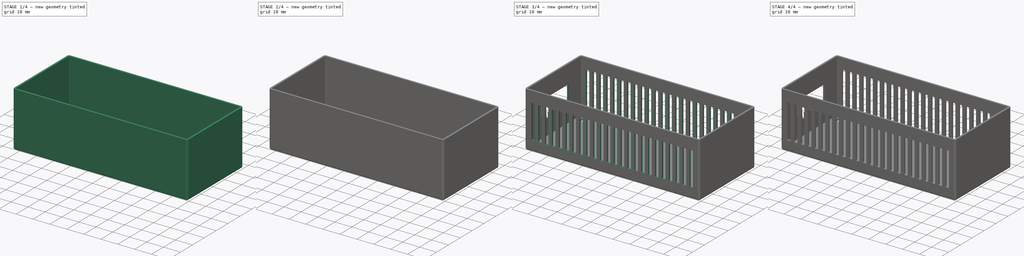
[diagram: build sequence overview — one tinted view per stage of 4, left to right]
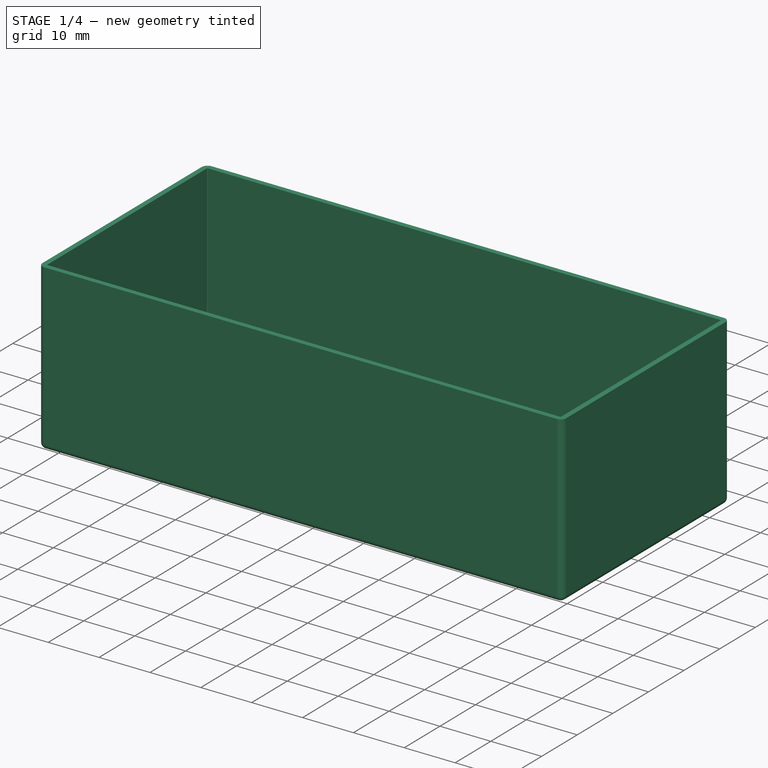
[diagram: stage 1 of 4 — iso view after this stage's code; geometry added in this stage tinted green]
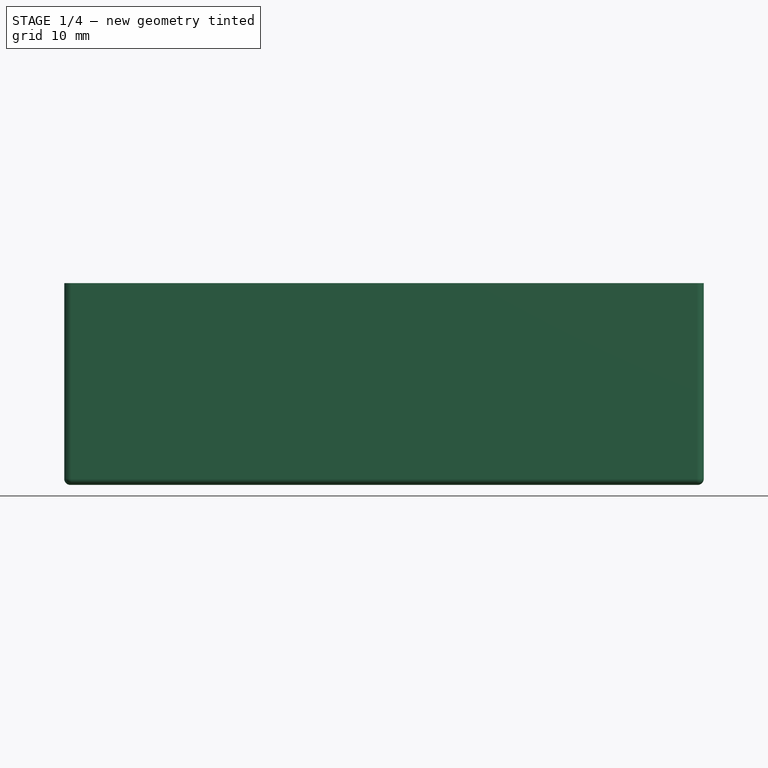
[diagram: stage 1 of 4 — front view after this stage's code; geometry added in this stage tinted green]
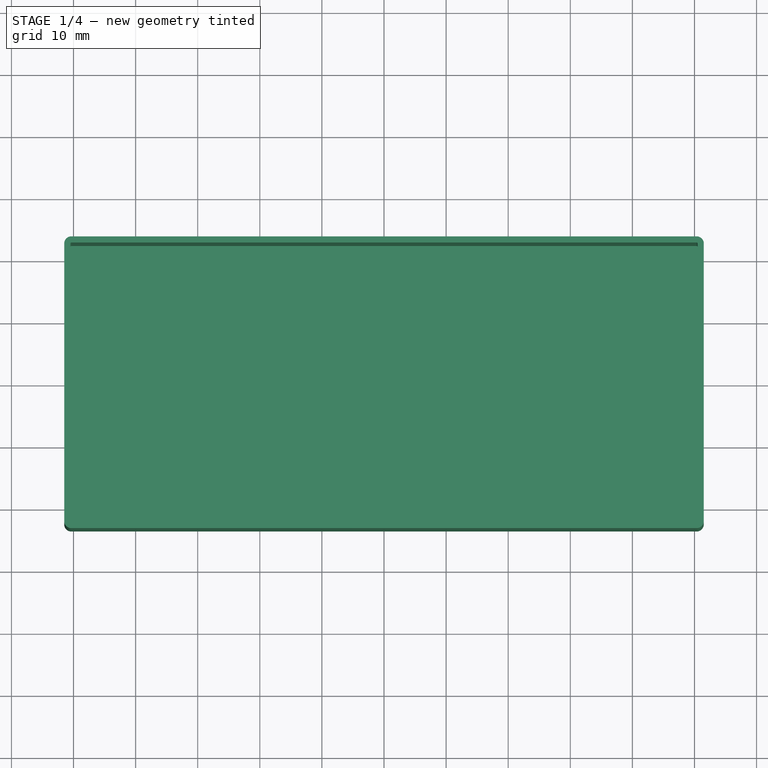
[diagram: stage 1 of 4 — top view after this stage's code; geometry added in this stage tinted green]
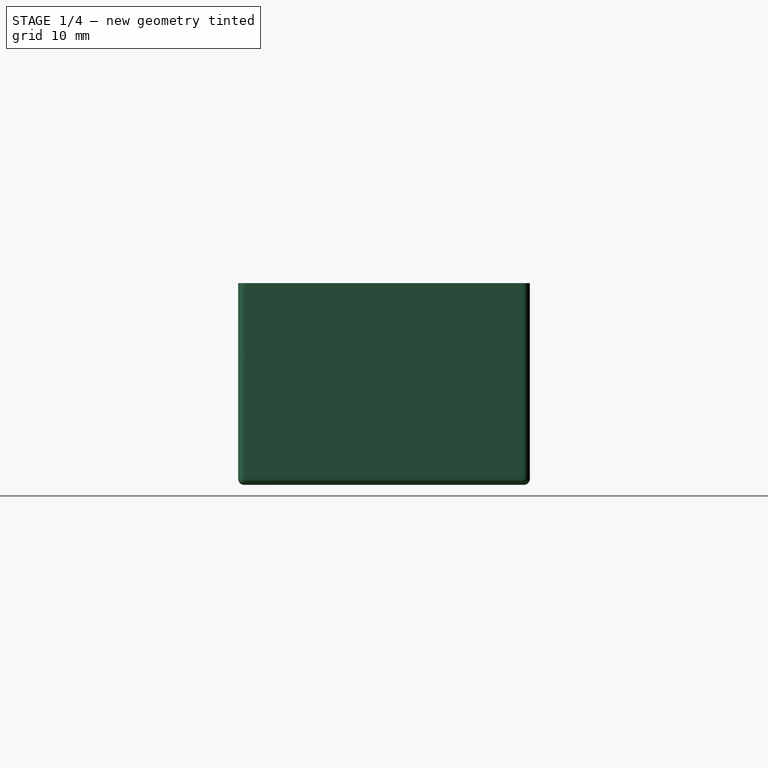
[diagram: stage 1 of 4 — right view after this stage's code; geometry added in this stage tinted green]
FCSTD DOCUMENT  (FreeCAD 0.21R33771 (Git))
Label: pbx_ring_gen_cover
License: All rights reserved
LicenseURL: http://en.wikipedia.org/wiki/All_rights_reserved
objects: PartDesign::Pocket×6, Sketcher::SketchObject×5, Part::Part2DObjectPython×3, PartDesign::Pad×1, PartDesign::Thickness×1, PartDesign::Hole×1, PartDesign::Body×1
note: 27 computed .brp shape members not serialized (recipe doc carries the construction recipe); baked Part::Feature solids carry a one-line shape summary decoded from their .brp

FEATURE [Sketcher::SketchObject] Sketch  label="CoverOutlineSketch"
  FullyConstrained = true
  MapMode = 5
  Support = -> [XY_Plane]
  sketch-geometry (10):
    g0: ArcOfCircle CenterX=-50.35 CenterY=-22.35 CenterZ=0 NormalX=0 NormalY=0 NormalZ=1 AngleXU=0 Radius=0.15 StartAngle=3.14159 EndAngle=4.71239
    g1: LineSegment StartX=-50.5 StartY=-22.35 StartZ=0 EndX=-50.5 EndY=22.35 EndZ=0
    g2: ArcOfCircle CenterX=-50.35 CenterY=22.35 CenterZ=0 NormalX=0 NormalY=0 NormalZ=1 AngleXU=0 Radius=0.15 StartAngle=1.5708 EndAngle=3.14159
    g3: LineSegment StartX=-50.35 StartY=22.5 StartZ=0 EndX=50.35 EndY=22.5 EndZ=0
    g4: ArcOfCircle CenterX=50.35 CenterY=22.35 CenterZ=0 NormalX=0 NormalY=0 NormalZ=1 AngleXU=0 Radius=0.15 StartAngle=-6.732e-13 EndAngle=1.5708
    g5: LineSegment StartX=50.5 StartY=22.35 StartZ=0 EndX=50.5 EndY=-22.35 EndZ=0
    g6: ArcOfCircle CenterX=50.35 CenterY=-22.35 CenterZ=0 NormalX=0 NormalY=0 NormalZ=1 AngleXU=0 Radius=0.15 StartAngle=4.71239 EndAngle=6.28319
    g7: LineSegment StartX=50.35 StartY=-22.5 StartZ=0 EndX=-50.35 EndY=-22.5 EndZ=0
    g8: GeomPoint X=-50.5 Y=-22.5 Z=0
    g9: GeomPoint X=50.5 Y=22.5 Z=0
  constraints (23):
    c: Tangent(g0,g1) = 1.5708
    c: Tangent(g1,g2) = 1.5708
    c: Tangent(g2,g3) = 1.5708
    c: Tangent(g3,g4) = 1.5708
    c: Tangent(g4,g5) = 1.5708
    c: Tangent(g5,g6) = 1.5708
    c: Tangent(g6,g7) = 1.5708
    c: Tangent(g7,g0) = 1.5708
    c: Horizontal(g3)
    c: Horizontal(g7)
    c: Vertical(g1)
    c: Vertical(g5)
    c: Equal(g0,g2)
    c: Equal(g2,g4)
    c: Equal(g4,g6)
    c: PointOnObject(g8,g1)
    c: PointOnObject(g8,g7)
    c: PointOnObject(g9,g3)
    c: PointOnObject(g9,g5)
    c: DistanceX(g1,g4) = 101
    c: DistanceY(g6,g3) = 45
    c: Radius(g2) = 0.15
    c: Symmetric(g0,g4,g-1)
FEATURE [PartDesign::Pad] Pad  label="CoverPad"
  Direction = (0,0,1)
  Length = 31.5
  Length2 = 10
  Profile = -> Sketch
  ReferenceAxis = -> Sketch [N_Axis]
  Type = 0
FEATURE [Sketcher::SketchObject] Sketch001  label="ScrewHoleSketch"
  FullyConstrained = true
  MapMode = 5
  Support = -> [XY_Plane]
  sketch-geometry (8):
    g0: Circle CenterX=-46.355 CenterY=18.669 CenterZ=0 NormalX=0 NormalY=0 NormalZ=1 AngleXU=0 Radius=1
    g1: LineSegment StartX=-46.355 StartY=18.669 StartZ=0 EndX=46.355 EndY=18.669 EndZ=0
    g2: LineSegment StartX=46.355 StartY=18.669 StartZ=0 EndX=46.355 EndY=-18.669 EndZ=0
    g3: LineSegment StartX=46.355 StartY=-18.669 StartZ=0 EndX=-46.355 EndY=-18.669 EndZ=0
    g4: LineSegment StartX=-46.355 StartY=-18.669 StartZ=0 EndX=-46.355 EndY=18.669 EndZ=0
    g5: Circle CenterX=46.355 CenterY=18.669 CenterZ=0 NormalX=0 NormalY=0 NormalZ=1 AngleXU=0 Radius=1
    g6: Circle CenterX=46.355 CenterY=-18.669 CenterZ=0 NormalX=0 NormalY=0 NormalZ=1 AngleXU=0 Radius=1
    g7: Circle CenterX=-46.355 CenterY=-18.669 CenterZ=0 NormalX=0 NormalY=0 NormalZ=1 AngleXU=0 Radius=1
  constraints (19):
    c: Coincident(g1,g2)
    c: Coincident(g2,g3)
    c: Coincident(g3,g4)
    c: Coincident(g4,g1)
    c: Horizontal(g1)
    c: Horizontal(g3)
    c: Vertical(g2)
    c: Vertical(g4)
    c: Coincident(g1,g0)
    c: Symmetric(g0,g2,g-1)
    c: DistanceX(g1,g1) = 92.71
    c: DistanceY(g2,g2) = 37.338
    c: Coincident(g5,g1)
    c: Coincident(g6,g2)
    c: Coincident(g7,g3)
    c: Diameter(g0) = 2
    c: Equal(g7,g6)
    c: Equal(g5,g7)
    c: Equal(g5,g0)
FEATURE [PartDesign::Thickness] Thickness  label="CoverThickness"
  Base = -> Pad [Face10]
  BaseFeature = -> Pad
  Intersection = false
  Join = 0
  Mode = 0
  SupportTransform = false
  Value = 1
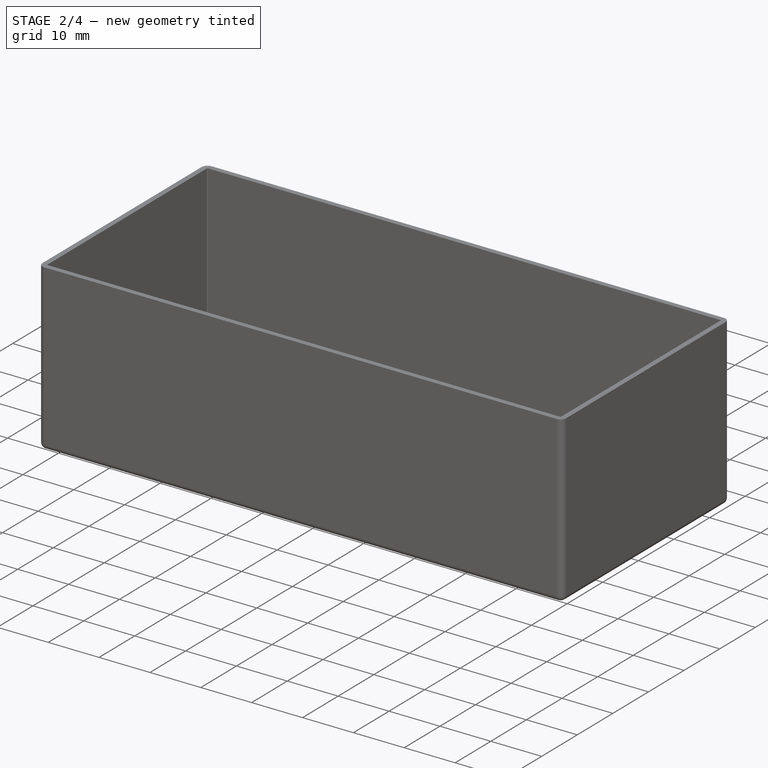
[diagram: stage 2 of 4 — iso view after this stage's code; geometry added in this stage tinted green]
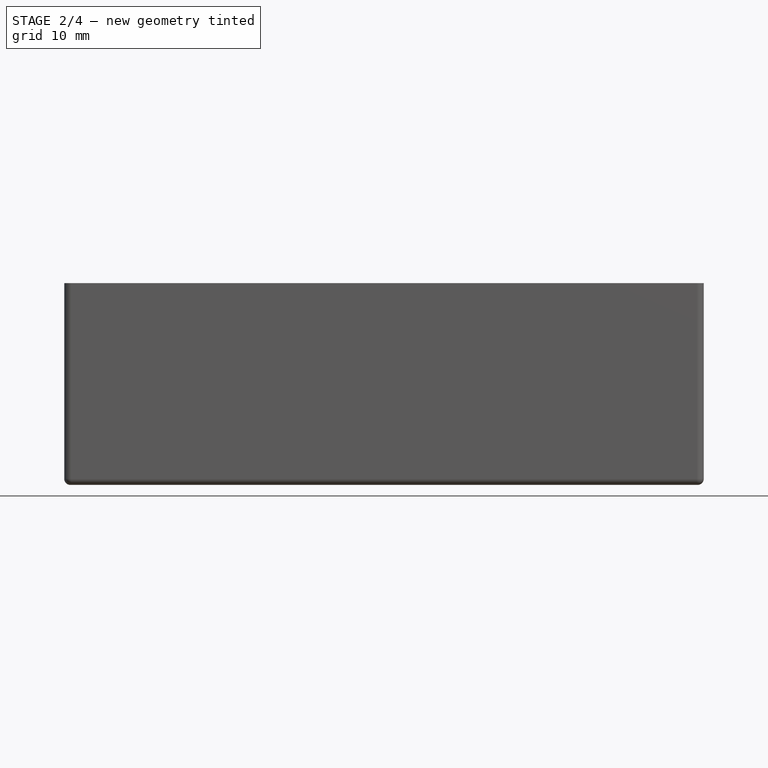
[diagram: stage 2 of 4 — front view after this stage's code; geometry added in this stage tinted green]
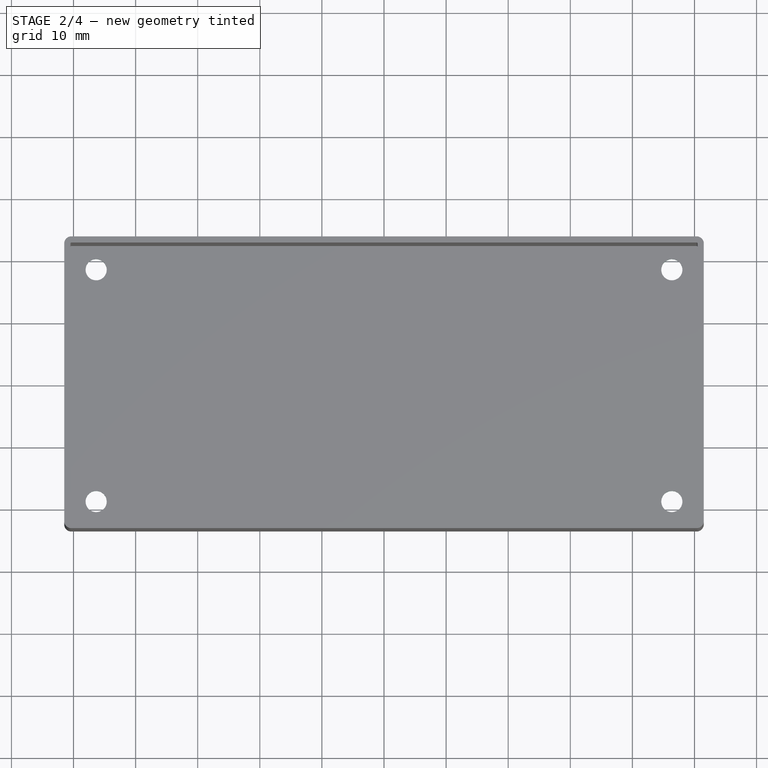
[diagram: stage 2 of 4 — top view after this stage's code; geometry added in this stage tinted green]
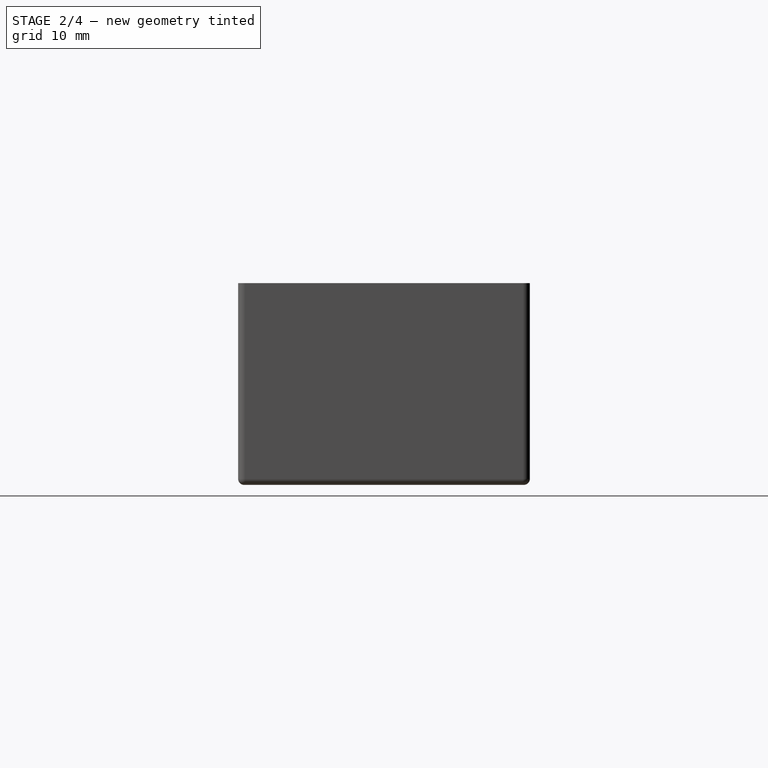
[diagram: stage 2 of 4 — right view after this stage's code; geometry added in this stage tinted green]
FEATURE [PartDesign::Hole] Hole  label="ScrewHoles"
  BaseFeature = -> Thickness
  CustomThreadClearance = 0
  Depth = 25
  DepthType = 0
  Diameter = 3.4
  DrillForDepth = false
  DrillPoint = 1
  DrillPointAngle = 118
  HoleCutCountersinkAngle = 90
  HoleCutCustomValues = false
  HoleCutDepth = 0
  HoleCutDiameter = 6.1
  HoleCutType = 0
  ModelThread = false
  Profile = -> Sketch001
  Tapered = false
  TaperedAngle = 90
  ThreadClass = 0
  ThreadDepth = 25
  ThreadDepthType = 0
  ThreadDirection = 0
  ThreadFit = 0
  ThreadSize = 9
  ThreadType = 1
  Threaded = false
  UseCustomThreadClearance = false
FEATURE [Sketcher::SketchObject] Sketch002  label="TermBlockSketch"
  FullyConstrained = true
  MapMode = 5
  Placement = pos=(-51.5,0,0) rot=(0.57735,-0.57735,-0.57735;2.0944rad)
  Support = -> [Hole]
  sketch-geometry (12):
    g0: LineSegment StartX=-12.12 StartY=11.5 StartZ=0 EndX=-12.12 EndY=20.5 EndZ=0
    g1: LineSegment StartX=10.88 StartY=20.5 StartZ=0 EndX=10.88 EndY=11.5 EndZ=0
    g2: LineSegment StartX=-12.12 StartY=20.5 StartZ=0 EndX=10.88 EndY=20.5 EndZ=0
    g3: LineSegment StartX=-5.37 StartY=11.5 StartZ=0 EndX=-5.37 EndY=9 EndZ=0
    g4: LineSegment StartX=-5.37 StartY=9 StartZ=0 EndX=-7.87 EndY=9 EndZ=0
    g5: LineSegment StartX=-7.87 StartY=9 StartZ=0 EndX=-7.87 EndY=11.5 EndZ=0
    g6: LineSegment StartX=4.13 StartY=11.5 StartZ=0 EndX=4.13 EndY=9 EndZ=0
    g7: LineSegment StartX=4.13 StartY=9 StartZ=0 EndX=6.63 EndY=9 EndZ=0
    g8: LineSegment StartX=6.63 StartY=9 StartZ=0 EndX=6.63 EndY=11.5 EndZ=0
    g9: LineSegment StartX=-12.12 StartY=11.5 StartZ=0 EndX=-7.87 EndY=11.5 EndZ=0
    g10: LineSegment StartX=-5.37 StartY=11.5 StartZ=0 EndX=4.13 EndY=11.5 EndZ=0
    g11: LineSegment StartX=6.63 StartY=11.5 StartZ=0 EndX=10.88 EndY=11.5 EndZ=0
  constraints (36):
    c: Vertical(g0)
    c: Vertical(g1)
    c: DistanceY(g0,g0) = 9
    c: Coincident(g2,g1)
    c: Horizontal(g2)
    c: Coincident(g3,g4)
    c: Coincident(g4,g5)
    c: Horizontal(g4)
    c: Vertical(g3)
    c: Vertical(g5)
    c: Coincident(g6,g7)
    c: Coincident(g7,g8)
    c: Horizontal(g7)
    c: Vertical(g6)
    c: Vertical(g8)
    c: Coincident(g9,g0)
    c: Coincident(g9,g5)
    c: Horizontal(g9)
    c: Coincident(g10,g3)
    c: Coincident(g10,g6)
    c: Horizontal(g10)
    c: Coincident(g11,g8)
    c: Coincident(g11,g1)
    c: Horizontal(g11)
    c: Coincident(g2,g0)
    c: DistanceX(g2,g2) = 23
    c: DistanceX(g9,g9) = 4.25
    c: Equal(g11,g9)
    c: DistanceY(g5,g5) = 2.5
    c: Equal(g5,g3)
    c: Equal(g3,g6)
    c: Equal(g6,g8)
    c: DistanceX(g4,g4) = 2.5
    c: Equal(g7,g4)
    c: DistanceY(g-1,g0) = 20.5
    c: DistanceX(g0,g-1) = 12.12
FEATURE [Part::Part2DObjectPython] ShapeString  label="RGText"  # Draft 2D object (typed FeaturePython)
  FontFile = <path>
  MakeFace = true
  Placement = pos=(49,-5,-1) rot=(0,1,0;3.14159rad)
  Size = 10
  String = RING GENERATOR
  Tracking = 0
FEATURE [PartDesign::Pocket] Pocket003  label="RGTextPocket"
  BaseFeature = -> Hole
  Direction = (-1e-16,0,1)
  Length = 0.5
  Length2 = 5
  Profile = -> ShapeString
  ReferenceAxis = -> ShapeString [N_Axis]
  Type = 0
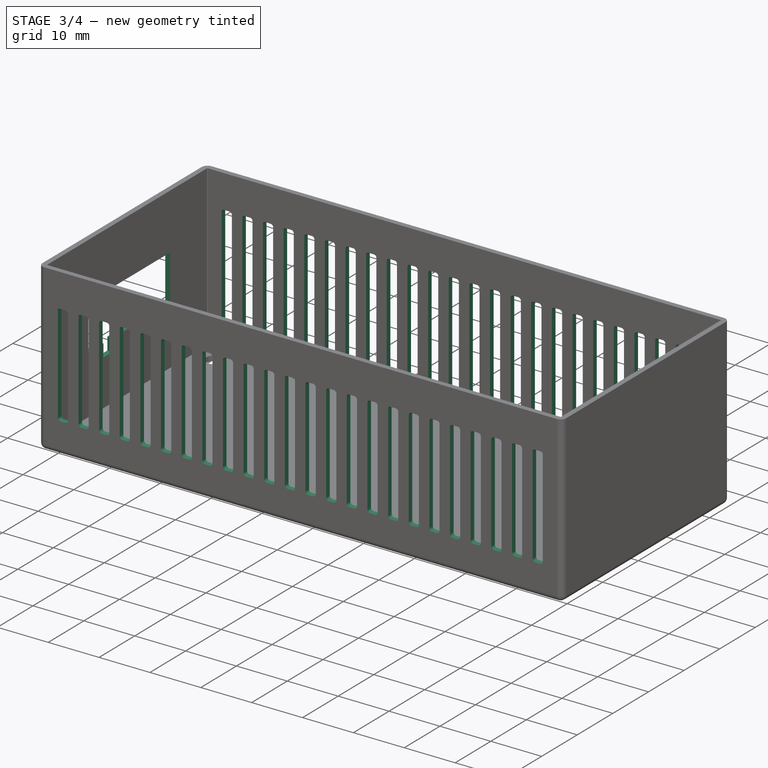
[diagram: stage 3 of 4 — iso view after this stage's code; geometry added in this stage tinted green]
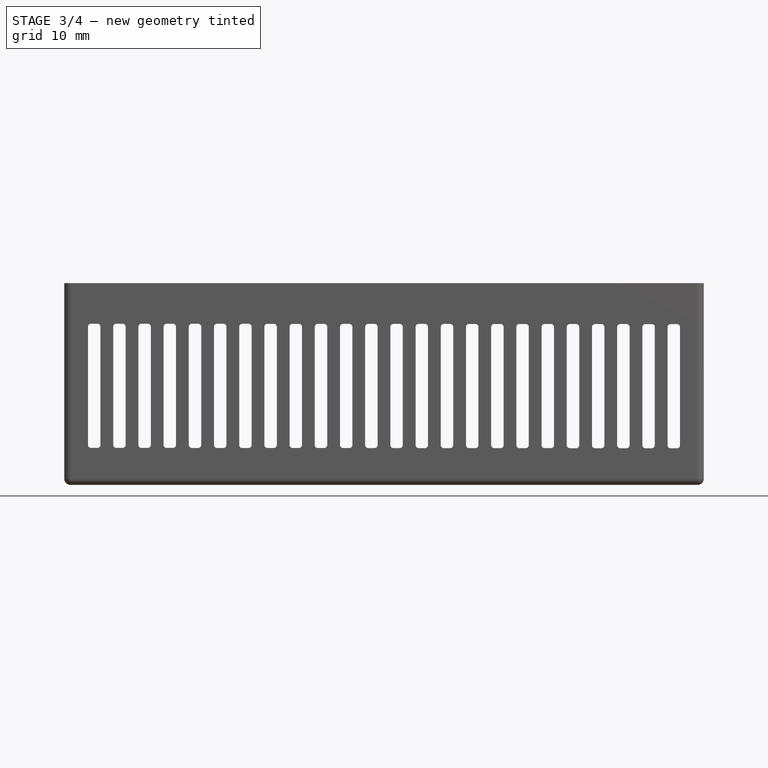
[diagram: stage 3 of 4 — front view after this stage's code; geometry added in this stage tinted green]
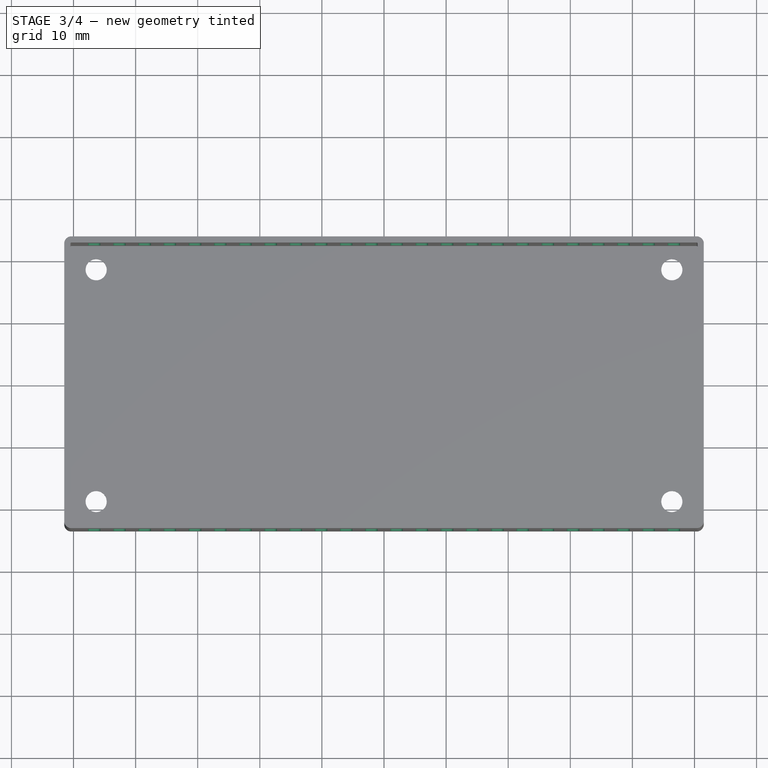
[diagram: stage 3 of 4 — top view after this stage's code; geometry added in this stage tinted green]
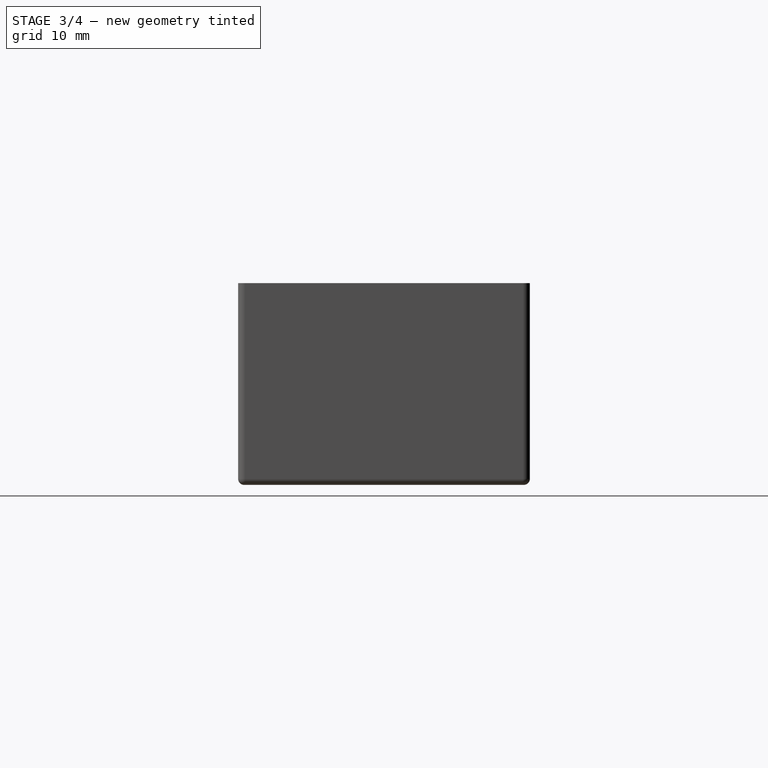
[diagram: stage 3 of 4 — right view after this stage's code; geometry added in this stage tinted green]
FEATURE [PartDesign::Pocket] Pocket  label="TermBlockPocket"
  BaseFeature = -> Pocket003
  Direction = (1,0,0)
  Length = 5
  Length2 = 5
  Profile = -> Sketch002
  ReferenceAxis = -> Sketch002 [N_Axis]
  Type = 0
FEATURE [Sketcher::SketchObject] Sketch003  label="TopVentSketch"
  ExternalGeometry = -> [Pocket]
  FullyConstrained = false
  MapMode = 5
  Placement = pos=(0,23.5,0) rot=(0,0.707107,0.707107;3.14159rad)
  Support = -> [Pocket]
  sketch-geometry (263):
    g0: ArcOfCircle CenterX=-47.165 CenterY=24.3989 CenterZ=0 NormalX=0 NormalY=0 NormalZ=1 AngleXU=0 Radius=0.5 StartAngle=1.5708 EndAngle=3.14159
    g1: LineSegment StartX=-47.165 StartY=24.8989 StartZ=0 EndX=-46.165 EndY=24.8989 EndZ=0
    g2: ArcOfCircle CenterX=-46.165 CenterY=24.3989 CenterZ=0 NormalX=0 NormalY=0 NormalZ=1 AngleXU=0 Radius=0.5 StartAngle=0 EndAngle=1.5708
    g3: LineSegment StartX=-45.665 StartY=24.3989 StartZ=0 EndX=-45.665 EndY=5.39886 EndZ=0
    g4: ArcOfCircle CenterX=-46.165 CenterY=5.39886 CenterZ=0 NormalX=0 NormalY=0 NormalZ=1 AngleXU=0 Radius=0.5 StartAngle=4.71239 EndAngle=6.28319
    g5: LineSegment StartX=-46.165 StartY=4.89886 StartZ=0 EndX=-47.165 EndY=4.89886 EndZ=0
    g6: ArcOfCircle CenterX=-47.165 CenterY=5.39886 CenterZ=0 NormalX=0 NormalY=0 NormalZ=1 AngleXU=0 Radius=0.5 StartAngle=3.14159 EndAngle=4.71239
    g7: LineSegment StartX=-47.665 StartY=5.39886 StartZ=0 EndX=-47.665 EndY=24.3989 EndZ=0
    g8: GeomPoint X=-47.665 Y=24.8989 Z=0
    g9: GeomPoint X=-45.665 Y=4.89886 Z=0
    g10: ArcOfCircle CenterX=-43.1071 CenterY=24.4016 CenterZ=0 NormalX=0 NormalY=0 NormalZ=1 AngleXU=0 Radius=0.5 StartAngle=1.5708 EndAngle=3.14159
    g11: LineSegment StartX=-43.1071 StartY=24.9016 StartZ=0 EndX=-42.1071 EndY=24.9016 EndZ=0
    g12: ArcOfCircle CenterX=-42.1071 CenterY=24.4016 CenterZ=0 NormalX=0 NormalY=0 NormalZ=1 AngleXU=0 Radius=0.5 StartAngle=1.6e-15 EndAngle=1.5708
    g13: LineSegment StartX=-41.6071 StartY=24.4016 StartZ=0 EndX=-41.6071 EndY=5.40158 EndZ=0
    g14: ArcOfCircle CenterX=-42.1071 CenterY=5.40158 CenterZ=0 NormalX=0 NormalY=0 NormalZ=1 AngleXU=0 Radius=0.5 StartAngle=4.71239 EndAngle=6.28319
    g15: LineSegment StartX=-42.1071 StartY=4.90158 StartZ=0 EndX=-43.1071 EndY=4.90158 EndZ=0
    g16: ArcOfCircle CenterX=-43.1071 CenterY=5.40158 CenterZ=0 NormalX=0 NormalY=0 NormalZ=1 AngleXU=0 Radius=0.5 StartAngle=3.14159 EndAngle=4.71239
    g17: LineSegment StartX=-43.6071 StartY=5.40158 StartZ=0 EndX=-43.6071 EndY=24.4016 EndZ=0
    g18: GeomPoint X=-43.6071 Y=24.9016 Z=0
    g19: GeomPoint X=-41.6071 Y=4.90158 Z=0
    g20: LineSegment StartX=-47.165 StartY=24.8989 StartZ=0 EndX=-43.1071 EndY=24.9016 EndZ=0
    g21: ArcOfCircle CenterX=-39.0493 CenterY=24.4043 CenterZ=0 NormalX=0 NormalY=0 NormalZ=1 AngleXU=0 Radius=0.5 StartAngle=1.5708 EndAngle=3.14159
    g22: LineSegment StartX=-39.0493 StartY=24.9043 StartZ=0 EndX=-38.0493 EndY=24.9043 EndZ=0
    g23: ArcOfCircle CenterX=-38.0493 CenterY=24.4043 CenterZ=0 NormalX=0 NormalY=0 NormalZ=1 AngleXU=0 Radius=0.5 StartAngle=3e-16 EndAngle=1.5708
    g24: LineSegment StartX=-37.5493 StartY=24.4043 StartZ=0 EndX=-37.5493 EndY=5.4043 EndZ=0
    g25: ArcOfCircle CenterX=-38.0493 CenterY=5.4043 CenterZ=0 NormalX=0 NormalY=0 NormalZ=1 AngleXU=0 Radius=0.5 StartAngle=4.71239 EndAngle=6.28319
    g26: LineSegment StartX=-38.0493 StartY=4.9043 StartZ=0 EndX=-39.0493 EndY=4.9043 EndZ=0
    g27: ArcOfCircle CenterX=-39.0493 CenterY=5.4043 CenterZ=0 NormalX=0 NormalY=0 NormalZ=1 AngleXU=0 Radius=0.5 StartAngle=3.14159 EndAngle=4.71239
    g28: LineSegment StartX=-39.5493 StartY=5.4043 StartZ=0 EndX=-39.5493 EndY=24.4043 EndZ=0
    g29: GeomPoint X=-39.5493 Y=24.9043 Z=0
    g30: GeomPoint X=-37.5493 Y=4.9043 Z=0
    g31: LineSegment StartX=-43.1071 StartY=24.9016 StartZ=0 EndX=-39.0493 EndY=24.9043 EndZ=0
    g32: ArcOfCircle CenterX=-34.9914 CenterY=24.407 CenterZ=0 NormalX=0 NormalY=0 NormalZ=1 AngleXU=0 Radius=0.5 StartAngle=1.5708 EndAngle=3.14159
    g33: LineSegment StartX=-34.9914 StartY=24.907 StartZ=0 EndX=-33.9914 EndY=24.907 EndZ=0
    g34: ArcOfCircle CenterX=-33.9914 CenterY=24.407 CenterZ=0 NormalX=0 NormalY=0 NormalZ=1 AngleXU=0 Radius=0.5 StartAngle=-9e-16 EndAngle=1.5708
    g35: LineSegment StartX=-33.4914 StartY=24.407 StartZ=0 EndX=-33.4914 EndY=5.40702 EndZ=0
    g36: ArcOfCircle CenterX=-33.9914 CenterY=5.40702 CenterZ=0 NormalX=0 NormalY=0 NormalZ=1 AngleXU=0 Radius=0.5 StartAngle=4.71239 EndAngle=6.28319
    g37: LineSegment StartX=-33.9914 StartY=4.90702 StartZ=0 EndX=-34.9914 EndY=4.90702 EndZ=0
    g38: ArcOfCircle CenterX=-34.9914 CenterY=5.40702 CenterZ=0 NormalX=0 NormalY=0 NormalZ=1 AngleXU=0 Radius=0.5 StartAngle=3.14159 EndAngle=4.71239
    g39: LineSegment StartX=-35.4914 StartY=5.40702 StartZ=0 EndX=-35.4914 EndY=24.407 EndZ=0
    g40: GeomPoint X=-35.4914 Y=24.907 Z=0
    g41: GeomPoint X=-33.4914 Y=4.90702 Z=0
    g42: LineSegment StartX=-39.0493 StartY=24.9043 StartZ=0 EndX=-34.9914 EndY=24.907 EndZ=0
    g43: ArcOfCircle CenterX=-30.9335 CenterY=24.4097 CenterZ=0 NormalX=0 NormalY=0 NormalZ=1 AngleXU=0 Radius=0.5 StartAngle=1.5708 EndAngle=3.14159
    g44: LineSegment StartX=-30.9335 StartY=24.9097 StartZ=0 EndX=-29.9335 EndY=24.9097 EndZ=0
    g45: ArcOfCircle CenterX=-29.9335 CenterY=24.4097 CenterZ=0 NormalX=0 NormalY=0 NormalZ=1 AngleXU=0 Radius=0.5 StartAngle=2.6e-15 EndAngle=1.5708
    g46: LineSegment StartX=-29.4335 StartY=24.4097 StartZ=0 EndX=-29.4335 EndY=5.40974 EndZ=0
    g47: ArcOfCircle CenterX=-29.9335 CenterY=5.40974 CenterZ=0 NormalX=0 NormalY=0 NormalZ=1 AngleXU=0 Radius=0.5 StartAngle=4.71239 EndAngle=6.28319
    g48: LineSegment StartX=-29.9335 StartY=4.90974 StartZ=0 EndX=-30.9335 EndY=4.90974 EndZ=0
    g49: ArcOfCircle CenterX=-30.9335 CenterY=5.40974 CenterZ=0 NormalX=0 NormalY=0 NormalZ=1 AngleXU=0 Radius=0.5 StartAngle=3.14159 EndAngle=4.71239
    g50: LineSegment StartX=-31.4335 StartY=5.40974 StartZ=0 EndX=-31.4335 EndY=24.4097 EndZ=0
    g51: GeomPoint X=-31.4335 Y=24.9097 Z=0
    g52: GeomPoint X=-29.4335 Y=4.90974 Z=0
    g53: LineSegment StartX=-34.9914 StartY=24.907 StartZ=0 EndX=-30.9335 EndY=24.9097 EndZ=0
    g54: ArcOfCircle CenterX=-26.8756 CenterY=24.4125 CenterZ=0 NormalX=0 NormalY=0 NormalZ=1 AngleXU=0 Radius=0.5 StartAngle=1.5708 EndAngle=3.14159
    g55: LineSegment StartX=-26.8756 StartY=24.9125 StartZ=0 EndX=-25.8756 EndY=24.9125 EndZ=0
    g56: ArcOfCircle CenterX=-25.8756 CenterY=24.4125 CenterZ=0 NormalX=0 NormalY=0 NormalZ=1 AngleXU=0 Radius=0.5 StartAngle=2.4e-15 EndAngle=1.5708
    g57: LineSegment StartX=-25.3756 StartY=24.4125 StartZ=0 EndX=-25.3756 EndY=5.41246 EndZ=0
    g58: ArcOfCircle CenterX=-25.8756 CenterY=5.41246 CenterZ=0 NormalX=0 NormalY=0 NormalZ=1 AngleXU=0 Radius=0.5 StartAngle=4.71239 EndAngle=6.28319
    g59: LineSegment StartX=-25.8756 StartY=4.91246 StartZ=0 EndX=-26.8756 EndY=4.91246 EndZ=0
    g60: ArcOfCircle CenterX=-26.8756 CenterY=5.41246 CenterZ=0 NormalX=0 NormalY=0 NormalZ=1 AngleXU=0 Radius=0.5 StartAngle=3.14159 EndAngle=4.71239
    g61: LineSegment StartX=-27.3756 StartY=5.41246 StartZ=0 EndX=-27.3756 EndY=24.4125 EndZ=0
    g62: GeomPoint X=-27.3756 Y=24.9125 Z=0
    g63: GeomPoint X=-25.3756 Y=4.91246 Z=0
    g64: LineSegment StartX=-30.9335 StartY=24.9097 StartZ=0 EndX=-26.8756 EndY=24.9125 EndZ=0
    g65: ArcOfCircle CenterX=-22.8178 CenterY=24.4152 CenterZ=0 NormalX=0 NormalY=0 NormalZ=1 AngleXU=0 Radius=0.5 StartAngle=1.5708 EndAngle=3.14159
    g66: LineSegment StartX=-22.8178 StartY=24.9152 StartZ=0 EndX=-21.8178 EndY=24.9152 EndZ=0
    g67: ArcOfCircle CenterX=-21.8178 CenterY=24.4152 CenterZ=0 NormalX=0 NormalY=0 NormalZ=1 AngleXU=0 Radius=0.5 StartAngle=2.3e-15 EndAngle=1.5708
    g68: LineSegment StartX=-21.3178 StartY=24.4152 StartZ=0 EndX=-21.3178 EndY=5.41518 EndZ=0
    g69: ArcOfCircle CenterX=-21.8178 CenterY=5.41518 CenterZ=0 NormalX=0 NormalY=0 NormalZ=1 AngleXU=0 Radius=0.5 StartAngle=4.71239 EndAngle=6.28319
    g70: LineSegment StartX=-21.8178 StartY=4.91518 StartZ=0 EndX=-22.8178 EndY=4.91518 EndZ=0
    g71: ArcOfCircle CenterX=-22.8178 CenterY=5.41518 CenterZ=0 NormalX=0 NormalY=0 NormalZ=1 AngleXU=0 Radius=0.5 StartAngle=3.14159 EndAngle=4.71239
    g72: LineSegment StartX=-23.3178 StartY=5.41518 StartZ=0 EndX=-23.3178 EndY=24.4152 EndZ=0
    g73: GeomPoint X=-23.3178 Y=24.9152 Z=0
    g74: GeomPoint X=-21.3178 Y=4.91518 Z=0
    g75: LineSegment StartX=-26.8756 StartY=24.9125 StartZ=0 EndX=-22.8178 EndY=24.9152 EndZ=0
    g76: ArcOfCircle CenterX=-18.7599 CenterY=24.4179 CenterZ=0 NormalX=0 NormalY=0 NormalZ=1 AngleXU=0 Radius=0.5 StartAngle=1.5708 EndAngle=3.14159
    g77: LineSegment StartX=-18.7599 StartY=24.9179 StartZ=0 EndX=-17.7599 EndY=24.9179 EndZ=0
    g78: ArcOfCircle CenterX=-17.7599 CenterY=24.4179 CenterZ=0 NormalX=0 NormalY=0 NormalZ=1 AngleXU=0 Radius=0.5 StartAngle=2.2e-15 EndAngle=1.5708
    g79: LineSegment StartX=-17.2599 StartY=24.4179 StartZ=0 EndX=-17.2599 EndY=5.4179 EndZ=0
    g80: ArcOfCircle CenterX=-17.7599 CenterY=5.4179 CenterZ=0 NormalX=0 NormalY=0 NormalZ=1 AngleXU=0 Radius=0.5 StartAngle=4.71239 EndAngle=6.28319
    g81: LineSegment StartX=-17.7599 StartY=4.9179 StartZ=0 EndX=-18.7599 EndY=4.9179 EndZ=0
    g82: ArcOfCircle CenterX=-18.7599 CenterY=5.4179 CenterZ=0 NormalX=0 NormalY=0 NormalZ=1 AngleXU=0 Radius=0.5 StartAngle=3.14159 EndAngle=4.71239
    g83: LineSegment StartX=-19.2599 StartY=5.4179 StartZ=0 EndX=-19.2599 EndY=24.4179 EndZ=0
    g84: GeomPoint X=-19.2599 Y=24.9179 Z=0
    g85: GeomPoint X=-17.2599 Y=4.9179 Z=0
    g86: LineSegment StartX=-22.8178 StartY=24.9152 StartZ=0 EndX=-18.7599 EndY=24.9179 EndZ=0
    g87: ArcOfCircle CenterX=-14.702 CenterY=24.4206 CenterZ=0 NormalX=0 NormalY=0 NormalZ=1 AngleXU=0 Radius=0.5 StartAngle=1.5708 EndAngle=3.14159
    g88: LineSegment StartX=-14.702 StartY=24.9206 StartZ=0 EndX=-13.702 EndY=24.9206 EndZ=0
    g89: ArcOfCircle CenterX=-13.702 CenterY=24.4206 CenterZ=0 NormalX=0 NormalY=0 NormalZ=1 AngleXU=0 Radius=0.5 StartAngle=2.6e-15 EndAngle=1.5708
    g90: LineSegment StartX=-13.202 StartY=24.4206 StartZ=0 EndX=-13.202 EndY=5.42062 EndZ=0
    g91: ArcOfCircle CenterX=-13.702 CenterY=5.42062 CenterZ=0 NormalX=0 NormalY=0 NormalZ=1 AngleXU=0 Radius=0.5 StartAngle=4.71239 EndAngle=6.28319
    g92: LineSegment StartX=-13.702 StartY=4.92062 StartZ=0 EndX=-14.702 EndY=4.92062 EndZ=0
    g93: ArcOfCircle CenterX=-14.702 CenterY=5.42062 CenterZ=0 NormalX=0 NormalY=0 NormalZ=1 AngleXU=0 Radius=0.5 StartAngle=3.14159 EndAngle=4.71239
    g94: LineSegment StartX=-15.202 StartY=5.42062 StartZ=0 EndX=-15.202 EndY=24.4206 EndZ=0
    g95: GeomPoint X=-15.202 Y=24.9206 Z=0
    g96: GeomPoint X=-13.202 Y=4.92062 Z=0
    g97: LineSegment StartX=-18.7599 StartY=24.9179 StartZ=0 EndX=-14.702 EndY=24.9206 EndZ=0
    g98: ArcOfCircle CenterX=-10.6441 CenterY=24.4233 CenterZ=0 NormalX=0 NormalY=0 NormalZ=1 AngleXU=0 Radius=0.5 StartAngle=1.5708 EndAngle=3.14159
    g99: LineSegment StartX=-10.6441 StartY=24.9233 StartZ=0 EndX=-9.64413 EndY=24.9233 EndZ=0
    g100: ArcOfCircle CenterX=-9.64413 CenterY=24.4233 CenterZ=0 NormalX=0 NormalY=0 NormalZ=1 AngleXU=0 Radius=0.5 StartAngle=2.5e-15 EndAngle=1.5708
    g101: LineSegment StartX=-9.14413 StartY=24.4233 StartZ=0 EndX=-9.14413 EndY=5.42333 EndZ=0
    g102: ArcOfCircle CenterX=-9.64413 CenterY=5.42333 CenterZ=0 NormalX=0 NormalY=0 NormalZ=1 AngleXU=0 Radius=0.5 StartAngle=4.71239 EndAngle=6.28319
    g103: LineSegment StartX=-9.64413 StartY=4.92333 StartZ=0 EndX=-10.6441 EndY=4.92333 EndZ=0
    g104: ArcOfCircle CenterX=-10.6441 CenterY=5.42333 CenterZ=0 NormalX=0 NormalY=0 NormalZ=1 AngleXU=0 Radius=0.5 StartAngle=3.14159 EndAngle=4.71239
    g105: LineSegment StartX=-11.1441 StartY=5.42333 StartZ=0 EndX=-11.1441 EndY=24.4233 EndZ=0
    g106: GeomPoint X=-11.1441 Y=24.9233 Z=0
    g107: GeomPoint X=-9.14413 Y=4.92333 Z=0
    g108: LineSegment StartX=-14.702 StartY=24.9206 StartZ=0 EndX=-10.6441 EndY=24.9233 EndZ=0
    g109: ArcOfCircle CenterX=-6.58626 CenterY=24.4261 CenterZ=0 NormalX=0 NormalY=0 NormalZ=1 AngleXU=0 Radius=0.5 StartAngle=1.5708 EndAngle=3.14159
    g110: LineSegment StartX=-6.58626 StartY=24.9261 StartZ=0 EndX=-5.58626 EndY=24.9261 EndZ=0
    g111: ArcOfCircle CenterX=-5.58626 CenterY=24.4261 CenterZ=0 NormalX=0 NormalY=0 NormalZ=1 AngleXU=0 Radius=0.5 StartAngle=2.6e-15 EndAngle=1.5708
    g112: LineSegment StartX=-5.08626 StartY=24.4261 StartZ=0 EndX=-5.08626 EndY=5.42605 EndZ=0
    g113: ArcOfCircle CenterX=-5.58626 CenterY=5.42605 CenterZ=0 NormalX=0 NormalY=0 NormalZ=1 AngleXU=0 Radius=0.5 StartAngle=4.71239 EndAngle=6.28319
    g114: LineSegment StartX=-5.58626 StartY=4.92605 StartZ=0 EndX=-6.58626 EndY=4.92605 EndZ=0
    g115: ArcOfCircle CenterX=-6.58626 CenterY=5.42605 CenterZ=0 NormalX=0 NormalY=0 NormalZ=1 AngleXU=0 Radius=0.5 StartAngle=3.14159 EndAngle=4.71239
    g116: LineSegment StartX=-7.08626 StartY=5.42605 StartZ=0 EndX=-7.08626 EndY=24.4261 EndZ=0
    g117: GeomPoint X=-7.08626 Y=24.9261 Z=0
    g118: GeomPoint X=-5.08626 Y=4.92605 Z=0
    g119: LineSegment StartX=-10.6441 StartY=24.9233 StartZ=0 EndX=-6.58626 EndY=24.9261 EndZ=0
    g120: ArcOfCircle CenterX=-2.52839 CenterY=24.4288 CenterZ=0 NormalX=0 NormalY=0 NormalZ=1 AngleXU=0 Radius=0.5 StartAngle=1.5708 EndAngle=3.14159
    g121: LineSegment StartX=-2.52839 StartY=24.9288 StartZ=0 EndX=-1.52839 EndY=24.9288 EndZ=0
    g122: ArcOfCircle CenterX=-1.52839 CenterY=24.4288 CenterZ=0 NormalX=0 NormalY=0 NormalZ=1 AngleXU=0 Radius=0.5 StartAngle=2.6e-15 EndAngle=1.5708
    g123: LineSegment StartX=-1.02839 StartY=24.4288 StartZ=0 EndX=-1.02839 EndY=5.42877 EndZ=0
    g124: ArcOfCircle CenterX=-1.52839 CenterY=5.42877 CenterZ=0 NormalX=0 NormalY=0 NormalZ=1 AngleXU=0 Radius=0.5 StartAngle=4.71239 EndAngle=6.28319
    g125: LineSegment StartX=-1.52839 StartY=4.92877 StartZ=0 EndX=-2.52839 EndY=4.92877 EndZ=0
    g126: ArcOfCircle CenterX=-2.52839 CenterY=5.42877 CenterZ=0 NormalX=0 NormalY=0 NormalZ=1 AngleXU=0 Radius=0.5 StartAngle=3.14159 EndAngle=4.71239
    g127: LineSegment StartX=-3.02839 StartY=5.42877 StartZ=0 EndX=-3.02839 EndY=24.4288 EndZ=0
    g128: GeomPoint X=-3.02839 Y=24.9288 Z=0
    g129: GeomPoint X=-1.02839 Y=4.92877 Z=0
    g130: LineSegment StartX=-6.58626 StartY=24.9261 StartZ=0 EndX=-2.52839 EndY=24.9288 EndZ=0
    g131: ArcOfCircle CenterX=1.52949 CenterY=24.4315 CenterZ=0 NormalX=0 NormalY=0 NormalZ=1 AngleXU=0 Radius=0.5 StartAngle=1.5708 EndAngle=3.14159
    g132: LineSegment StartX=1.52949 StartY=24.9315 StartZ=0 EndX=2.52949 EndY=24.9315 EndZ=0
    g133: ArcOfCircle CenterX=2.52949 CenterY=24.4315 CenterZ=0 NormalX=0 NormalY=0 NormalZ=1 AngleXU=0 Radius=0.5 StartAngle=2.6e-15 EndAngle=1.5708
    g134: LineSegment StartX=3.02949 StartY=24.4315 StartZ=0 EndX=3.02949 EndY=5.43149 EndZ=0
    g135: ArcOfCircle CenterX=2.52949 CenterY=5.43149 CenterZ=0 NormalX=0 NormalY=0 NormalZ=1 AngleXU=0 Radius=0.5 StartAngle=4.71239 EndAngle=6.28319
    g136: LineSegment StartX=2.52949 StartY=4.93149 StartZ=0 EndX=1.52949 EndY=4.93149 EndZ=0
    g137: ArcOfCircle CenterX=1.52949 CenterY=5.43149 CenterZ=0 NormalX=0 NormalY=0 NormalZ=1 AngleXU=0 Radius=0.5 StartAngle=3.14159 EndAngle=4.71239
    g138: LineSegment StartX=1.02949 StartY=5.43149 StartZ=0 EndX=1.02949 EndY=24.4315 EndZ=0
    g139: GeomPoint X=1.02949 Y=24.9315 Z=0
    g140: GeomPoint X=3.02949 Y=4.93149 Z=0
    g141: LineSegment StartX=-2.52839 StartY=24.9288 StartZ=0 EndX=1.52949 EndY=24.9315 EndZ=0
    g142: ArcOfCircle CenterX=5.58736 CenterY=24.4342 CenterZ=0 NormalX=0 NormalY=0 NormalZ=1 AngleXU=0 Radius=0.5 StartAngle=1.5708 EndAngle=3.14159
    g143: LineSegment StartX=5.58736 StartY=24.9342 StartZ=0 EndX=6.58736 EndY=24.9342 EndZ=0
    g144: ArcOfCircle CenterX=6.58736 CenterY=24.4342 CenterZ=0 NormalX=0 NormalY=0 NormalZ=1 AngleXU=0 Radius=0.5 StartAngle=2.6e-15 EndAngle=1.5708
    g145: LineSegment StartX=7.08736 StartY=24.4342 StartZ=0 EndX=7.08736 EndY=5.43421 EndZ=0
    g146: ArcOfCircle CenterX=6.58736 CenterY=5.43421 CenterZ=0 NormalX=0 NormalY=0 NormalZ=1 AngleXU=0 Radius=0.5 StartAngle=4.71239 EndAngle=6.28319
    g147: LineSegment StartX=6.58736 StartY=4.93421 StartZ=0 EndX=5.58736 EndY=4.93421 EndZ=0
    g148: ArcOfCircle CenterX=5.58736 CenterY=5.43421 CenterZ=0 NormalX=0 NormalY=0 NormalZ=1 AngleXU=0 Radius=0.5 StartAngle=3.14159 EndAngle=4.71239
    g149: LineSegment StartX=5.08736 StartY=5.43421 StartZ=0 EndX=5.08736 EndY=24.4342 EndZ=0
    g150: GeomPoint X=5.08736 Y=24.9342 Z=0
    g151: GeomPoint X=7.08736 Y=4.93421 Z=0
    g152: LineSegment StartX=1.52949 StartY=24.9315 StartZ=0 EndX=5.58736 EndY=24.9342 EndZ=0
    g153: ArcOfCircle CenterX=9.64524 CenterY=24.4369 CenterZ=0 NormalX=0 NormalY=0 NormalZ=1 AngleXU=0 Radius=0.5 StartAngle=1.5708 EndAngle=3.14159
    g154: LineSegment StartX=9.64524 StartY=24.9369 StartZ=0 EndX=10.6452 EndY=24.9369 EndZ=0
    g155: ArcOfCircle CenterX=10.6452 CenterY=24.4369 CenterZ=0 NormalX=0 NormalY=0 NormalZ=1 AngleXU=0 Radius=0.5 StartAngle=2.4e-15 EndAngle=1.5708
    g156: LineSegment StartX=11.1452 StartY=24.4369 StartZ=0 EndX=11.1452 EndY=5.43693 EndZ=0
    g157: ArcOfCircle CenterX=10.6452 CenterY=5.43693 CenterZ=0 NormalX=0 NormalY=0 NormalZ=1 AngleXU=0 Radius=0.5 StartAngle=4.71239 EndAngle=6.28319
    g158: LineSegment StartX=10.6452 StartY=4.93693 StartZ=0 EndX=9.64524 EndY=4.93693 EndZ=0
    g159: ArcOfCircle CenterX=9.64524 CenterY=5.43693 CenterZ=0 NormalX=0 NormalY=0 NormalZ=1 AngleXU=0 Radius=0.5 StartAngle=3.14159 EndAngle=4.71239
    g160: LineSegment StartX=9.14524 StartY=5.43693 StartZ=0 EndX=9.14524 EndY=24.4369 EndZ=0
    g161: GeomPoint X=9.14524 Y=24.9369 Z=0
    g162: GeomPoint X=11.1452 Y=4.93693 Z=0
    g163: LineSegment StartX=5.58736 StartY=24.9342 StartZ=0 EndX=9.64524 EndY=24.9369 EndZ=0
    g164: ArcOfCircle CenterX=13.7031 CenterY=24.4396 CenterZ=0 NormalX=0 NormalY=0 NormalZ=1 AngleXU=0 Radius=0.5 StartAngle=1.5708 EndAngle=3.14159
    g165: LineSegment StartX=13.7031 StartY=24.9396 StartZ=0 EndX=14.7031 EndY=24.9396 EndZ=0
    g166: ArcOfCircle CenterX=14.7031 CenterY=24.4396 CenterZ=0 NormalX=0 NormalY=0 NormalZ=1 AngleXU=0 Radius=0.5 StartAngle=2.3e-15 EndAngle=1.5708
    g167: LineSegment StartX=15.2031 StartY=24.4396 StartZ=0 EndX=15.2031 EndY=5.43965 EndZ=0
    g168: ArcOfCircle CenterX=14.7031 CenterY=5.43965 CenterZ=0 NormalX=0 NormalY=0 NormalZ=1 AngleXU=0 Radius=0.5 StartAngle=4.71239 EndAngle=6.28319
    g169: LineSegment StartX=14.7031 StartY=4.93965 StartZ=0 EndX=13.7031 EndY=4.93965 EndZ=0
    g170: ArcOfCircle CenterX=13.7031 CenterY=5.43965 CenterZ=0 NormalX=0 NormalY=0 NormalZ=1 AngleXU=0 Radius=0.5 StartAngle=3.14159 EndAngle=4.71239
    g171: LineSegment StartX=13.2031 StartY=5.43965 StartZ=0 EndX=13.2031 EndY=24.4396 EndZ=0
    g172: GeomPoint X=13.2031 Y=24.9396 Z=0
    g173: GeomPoint X=15.2031 Y=4.93965 Z=0
    g174: LineSegment StartX=9.64524 StartY=24.9369 StartZ=0 EndX=13.7031 EndY=24.9396 EndZ=0
    g175: ArcOfCircle CenterX=17.761 CenterY=24.4424 CenterZ=0 NormalX=0 NormalY=0 NormalZ=1 AngleXU=0 Radius=0.5 StartAngle=1.5708 EndAngle=3.14159
    g176: LineSegment StartX=17.761 StartY=24.9424 StartZ=0 EndX=18.761 EndY=24.9424 EndZ=0
    g177: ArcOfCircle CenterX=18.761 CenterY=24.4424 CenterZ=0 NormalX=0 NormalY=0 NormalZ=1 AngleXU=0 Radius=0.5 StartAngle=2.6e-15 EndAngle=1.5708
    g178: LineSegment StartX=19.261 StartY=24.4424 StartZ=0 EndX=19.261 EndY=5.44237 EndZ=0
    g179: ArcOfCircle CenterX=18.761 CenterY=5.44237 CenterZ=0 NormalX=0 NormalY=0 NormalZ=1 AngleXU=0 Radius=0.5 StartAngle=4.71239 EndAngle=6.28319
    g180: LineSegment StartX=18.761 StartY=4.94237 StartZ=0 EndX=17.761 EndY=4.94237 EndZ=0
    g181: ArcOfCircle CenterX=17.761 CenterY=5.44237 CenterZ=0 NormalX=0 NormalY=0 NormalZ=1 AngleXU=0 Radius=0.5 StartAngle=3.14159 EndAngle=4.71239
    g182: LineSegment StartX=17.261 StartY=5.44237 StartZ=0 EndX=17.261 EndY=24.4424 EndZ=0
    g183: GeomPoint X=17.261 Y=24.9424 Z=0
    g184: GeomPoint X=19.261 Y=4.94237 Z=0
    g185: LineSegment StartX=13.7031 StartY=24.9396 StartZ=0 EndX=17.761 EndY=24.9424 EndZ=0
    g186: ArcOfCircle CenterX=21.8189 CenterY=24.4451 CenterZ=0 NormalX=0 NormalY=0 NormalZ=1 AngleXU=0 Radius=0.5 StartAngle=1.5708 EndAngle=3.14159
    g187: LineSegment StartX=21.8189 StartY=24.9451 StartZ=0 EndX=22.8189 EndY=24.9451 EndZ=0
    g188: ArcOfCircle CenterX=22.8189 CenterY=24.4451 CenterZ=0 NormalX=0 NormalY=0 NormalZ=1 AngleXU=0 Radius=0.5 StartAngle=2.4e-15 EndAngle=1.5708
    g189: LineSegment StartX=23.3189 StartY=24.4451 StartZ=0 EndX=23.3189 EndY=5.44509 EndZ=0
    g190: ArcOfCircle CenterX=22.8189 CenterY=5.44509 CenterZ=0 NormalX=0 NormalY=0 NormalZ=1 AngleXU=0 Radius=0.5 StartAngle=4.71239 EndAngle=6.28319
    g191: LineSegment StartX=22.8189 StartY=4.94509 StartZ=0 EndX=21.8189 EndY=4.94509 EndZ=0
    g192: ArcOfCircle CenterX=21.8189 CenterY=5.44509 CenterZ=0 NormalX=0 NormalY=0 NormalZ=1 AngleXU=0 Radius=0.5 StartAngle=3.14159 EndAngle=4.71239
    g193: LineSegment StartX=21.3189 StartY=5.44509 StartZ=0 EndX=21.3189 EndY=24.4451 EndZ=0
    g194: GeomPoint X=21.3189 Y=24.9451 Z=0
    g195: GeomPoint X=23.3189 Y=4.94509 Z=0
    g196: LineSegment StartX=17.761 StartY=24.9424 StartZ=0 EndX=21.8189 EndY=24.9451 EndZ=0
    g197: ArcOfCircle CenterX=25.8767 CenterY=24.4478 CenterZ=0 NormalX=0 NormalY=0 NormalZ=1 AngleXU=0 Radius=0.5 StartAngle=1.5708 EndAngle=3.14159
    g198: LineSegment StartX=25.8767 StartY=24.9478 StartZ=0 EndX=26.8767 EndY=24.9478 EndZ=0
    g199: ArcOfCircle CenterX=26.8767 CenterY=24.4478 CenterZ=0 NormalX=0 NormalY=0 NormalZ=1 AngleXU=0 Radius=0.5 StartAngle=2.6e-15 EndAngle=1.5708
    g200: LineSegment StartX=27.3767 StartY=24.4478 StartZ=0 EndX=27.3767 EndY=5.44781 EndZ=0
    g201: ArcOfCircle CenterX=26.8767 CenterY=5.44781 CenterZ=0 NormalX=0 NormalY=0 NormalZ=1 AngleXU=0 Radius=0.5 StartAngle=4.71239 EndAngle=6.28319
    g202: LineSegment StartX=26.8767 StartY=4.94781 StartZ=0 EndX=25.8767 EndY=4.94781 EndZ=0
    g203: ArcOfCircle CenterX=25.8767 CenterY=5.44781 CenterZ=0 NormalX=0 NormalY=0 NormalZ=1 AngleXU=0 Radius=0.5 StartAngle=3.14159 EndAngle=4.71239
    g204: LineSegment StartX=25.3767 StartY=5.44781 StartZ=0 EndX=25.3767 EndY=24.4478 EndZ=0
    g205: GeomPoint X=25.3767 Y=24.9478 Z=0
    g206: GeomPoint X=27.3767 Y=4.94781 Z=0
    g207: LineSegment StartX=21.8189 StartY=24.9451 StartZ=0 EndX=25.8767 EndY=24.9478 EndZ=0
    g208: ArcOfCircle CenterX=29.9346 CenterY=24.4505 CenterZ=0 NormalX=0 NormalY=0 NormalZ=1 AngleXU=0 Radius=0.5 StartAngle=1.5708 EndAngle=3.14159
    g209: LineSegment StartX=29.9346 StartY=24.9505 StartZ=0 EndX=30.9346 EndY=24.9505 EndZ=0
    g210: ArcOfCircle CenterX=30.9346 CenterY=24.4505 CenterZ=0 NormalX=0 NormalY=0 NormalZ=1 AngleXU=0 Radius=0.5 StartAngle=2.6e-15 EndAngle=1.5708
    g211: LineSegment StartX=31.4346 StartY=24.4505 StartZ=0 EndX=31.4346 EndY=5.45052 EndZ=0
    g212: ArcOfCircle CenterX=30.9346 CenterY=5.45052 CenterZ=0 NormalX=0 NormalY=0 NormalZ=1 AngleXU=0 Radius=0.5 StartAngle=4.71239 EndAngle=6.28319
    g213: LineSegment StartX=30.9346 StartY=4.95052 StartZ=0 EndX=29.9346 EndY=4.95052 EndZ=0
    g214: ArcOfCircle CenterX=29.9346 CenterY=5.45052 CenterZ=0 NormalX=0 NormalY=0 NormalZ=1 AngleXU=0 Radius=0.5 StartAngle=3.14159 EndAngle=4.71239
    g215: LineSegment StartX=29.4346 StartY=5.45052 StartZ=0 EndX=29.4346 EndY=24.4505 EndZ=0
    g216: GeomPoint X=29.4346 Y=24.9505 Z=0
    g217: GeomPoint X=31.4346 Y=4.95052 Z=0
    g218: LineSegment StartX=25.8767 StartY=24.9478 StartZ=0 EndX=29.9346 EndY=24.9505 EndZ=0
    g219: ArcOfCircle CenterX=33.9925 CenterY=24.4532 CenterZ=0 NormalX=0 NormalY=0 NormalZ=1 AngleXU=0 Radius=0.5 StartAngle=1.5708 EndAngle=3.14159
    g220: LineSegment StartX=33.9925 StartY=24.9532 StartZ=0 EndX=34.9925 EndY=24.9532 EndZ=0
    g221: ArcOfCircle CenterX=34.9925 CenterY=24.4532 CenterZ=0 NormalX=0 NormalY=0 NormalZ=1 AngleXU=0 Radius=0.5 StartAngle=2.5e-15 EndAngle=1.5708
    g222: LineSegment StartX=35.4925 StartY=24.4532 StartZ=0 EndX=35.4925 EndY=5.45324 EndZ=0
    g223: ArcOfCircle CenterX=34.9925 CenterY=5.45324 CenterZ=0 NormalX=0 NormalY=0 NormalZ=1 AngleXU=0 Radius=0.5 StartAngle=4.71239 EndAngle=6.28319
    g224: LineSegment StartX=34.9925 StartY=4.95324 StartZ=0 EndX=33.9925 EndY=4.95324 EndZ=0
    g225: ArcOfCircle CenterX=33.9925 CenterY=5.45324 CenterZ=0 NormalX=0 NormalY=0 NormalZ=1 AngleXU=0 Radius=0.5 StartAngle=3.14159 EndAngle=4.71239
    g226: LineSegment StartX=33.4925 StartY=5.45324 StartZ=0 EndX=33.4925 EndY=24.4532 EndZ=0
    g227: GeomPoint X=33.4925 Y=24.9532 Z=0
    g228: GeomPoint X=35.4925 Y=4.95324 Z=0
    g229: LineSegment StartX=29.9346 StartY=24.9505 StartZ=0 EndX=33.9925 EndY=24.9532 EndZ=0
    g230: ArcOfCircle CenterX=38.0504 CenterY=24.456 CenterZ=0 NormalX=0 NormalY=0 NormalZ=1 AngleXU=0 Radius=0.5 StartAngle=1.5708 EndAngle=3.14159
    g231: LineSegment StartX=38.0504 StartY=24.956 StartZ=0 EndX=39.0504 EndY=24.956 EndZ=0
    g232: ArcOfCircle CenterX=39.0504 CenterY=24.456 CenterZ=0 NormalX=0 NormalY=0 NormalZ=1 AngleXU=0 Radius=0.5 StartAngle=8e-16 EndAngle=1.5708
    g233: LineSegment StartX=39.5504 StartY=24.456 StartZ=0 EndX=39.5504 EndY=5.45596 EndZ=0
    g234: ArcOfCircle CenterX=39.0504 CenterY=5.45596 CenterZ=0 NormalX=0 NormalY=0 NormalZ=1 AngleXU=0 Radius=0.5 StartAngle=4.71239 EndAngle=6.28319
    g235: LineSegment StartX=39.0504 StartY=4.95596 StartZ=0 EndX=38.0504 EndY=4.95596 EndZ=0
    g236: ArcOfCircle CenterX=38.0504 CenterY=5.45596 CenterZ=0 NormalX=0 NormalY=0 NormalZ=1 AngleXU=0 Radius=0.5 StartAngle=3.14159 EndAngle=4.71239
    g237: LineSegment StartX=37.5504 StartY=5.45596 StartZ=0 EndX=37.5504 EndY=24.456 EndZ=0
    g238: GeomPoint X=37.5504 Y=24.956 Z=0
    g239: GeomPoint X=39.5504 Y=4.95596 Z=0
    g240: LineSegment StartX=33.9925 StartY=24.9532 StartZ=0 EndX=38.0504 EndY=24.956 EndZ=0
    g241: ArcOfCircle CenterX=42.1082 CenterY=24.4587 CenterZ=0 NormalX=0 NormalY=0 NormalZ=1 AngleXU=0 Radius=0.5 StartAngle=1.5708 EndAngle=3.14159
    g242: LineSegment StartX=42.1082 StartY=24.9587 StartZ=0 EndX=43.1082 EndY=24.9587 EndZ=0
    g243: ArcOfCircle CenterX=43.1082 CenterY=24.4587 CenterZ=0 NormalX=0 NormalY=0 NormalZ=1 AngleXU=0 Radius=0.5 StartAngle=3.6e-15 EndAngle=1.5708
    g244: LineSegment StartX=43.6082 StartY=24.4587 StartZ=0 EndX=43.6082 EndY=5.45868 EndZ=0
    g245: ArcOfCircle CenterX=43.1082 CenterY=5.45868 CenterZ=0 NormalX=0 NormalY=0 NormalZ=1 AngleXU=0 Radius=0.5 StartAngle=4.71239 EndAngle=6.28319
    g246: LineSegment StartX=43.1082 StartY=4.95868 StartZ=0 EndX=42.1082 EndY=4.95868 EndZ=0
    g247: ArcOfCircle CenterX=42.1082 CenterY=5.45868 CenterZ=0 NormalX=0 NormalY=0 NormalZ=1 AngleXU=0 Radius=0.5 StartAngle=3.14159 EndAngle=4.71239
    g248: LineSegment StartX=41.6082 StartY=5.45868 StartZ=0 EndX=41.6082 EndY=24.4587 EndZ=0
    g249: GeomPoint X=41.6082 Y=24.9587 Z=0
    g250: GeomPoint X=43.6082 Y=4.95868 Z=0
    g251: LineSegment StartX=38.0504 StartY=24.956 StartZ=0 EndX=42.1082 EndY=24.9587 EndZ=0
    g252: ArcOfCircle CenterX=46.1661 CenterY=24.4614 CenterZ=0 NormalX=0 NormalY=0 NormalZ=1 AngleXU=0 Radius=0.5 StartAngle=1.5708 EndAngle=3.14159
    g253: LineSegment StartX=46.1661 StartY=24.9614 StartZ=0 EndX=47.1661 EndY=24.9614 EndZ=0
    g254: ArcOfCircle CenterX=47.1661 CenterY=24.4614 CenterZ=0 NormalX=0 NormalY=0 NormalZ=1 AngleXU=0 Radius=0.5 StartAngle=-3.6e-15 EndAngle=1.5708
    g255: LineSegment StartX=47.6661 StartY=24.4614 StartZ=0 EndX=47.6661 EndY=5.4614 EndZ=0
    g256: ArcOfCircle CenterX=47.1661 CenterY=5.4614 CenterZ=0 NormalX=0 NormalY=0 NormalZ=1 AngleXU=0 Radius=0.5 StartAngle=4.71239 EndAngle=6.28319
    g257: LineSegment StartX=47.1661 StartY=4.9614 StartZ=0 EndX=46.1661 EndY=4.9614 EndZ=0
    g258: ArcOfCircle CenterX=46.1661 CenterY=5.4614 CenterZ=0 NormalX=0 NormalY=0 NormalZ=1 AngleXU=0 Radius=0.5 StartAngle=3.14159 EndAngle=4.71239
    g259: LineSegment StartX=45.6661 StartY=5.4614 StartZ=0 EndX=45.6661 EndY=24.4614 EndZ=0
    g260: GeomPoint X=45.6661 Y=24.9614 Z=0
    g261: GeomPoint X=47.6661 Y=4.9614 Z=0
    g262: LineSegment StartX=42.1082 StartY=24.9587 StartZ=0 EndX=46.1661 EndY=24.9614 EndZ=0
  constraints (621):
    c: Tangent(g0,g1) = 1.5708
    c: Tangent(g1,g2) = 1.5708
    c: Tangent(g2,g3) = 1.5708
    c: Tangent(g3,g4) = 1.5708
    c: Tangent(g4,g5) = 1.5708
    c: Tangent(g5,g6) = 1.5708
    c: Tangent(g6,g7) = 1.5708
    c: Tangent(g7,g0) = 1.5708
    c: Horizontal(g1)
    c: Horizontal(g5)
    c: Vertical(g3)
    c: Vertical(g7)
    c: Equal(g0,g2)
    c: Equal(g2,g4)
    c: Equal(g4,g6)
    c: PointOnObject(g8,g1)
    c: PointOnObject(g8,g7)
    c: PointOnObject(g9,g3)
    c: PointOnObject(g9,g5)
    c: DistanceY(g5,g0) = 20
    c: DistanceX(g0,g2) = 2
    c: Radius(g0) = 0.5
    c: Tangent(g10,g11) = 1.5708
    c: Tangent(g11,g12) = 1.5708
    c: Tangent(g12,g13) = 1.5708
    c: Tangent(g13,g14) = 1.5708
    c: Tangent(g14,g15) = 1.5708
    c: Tangent(g15,g16) = 1.5708
    c: Tangent(g16,g17) = 1.5708
    c: Tangent(g17,g10) = 1.5708
    c: Horizontal(g11)
    c: Horizontal(g15)
    c: Vertical(g13)
    c: Vertical(g17)
    c: Equal(g10,g12)
    c: Equal(g12,g14)
    c: Equal(g14,g16)
    c: PointOnObject(g18,g11)
    c: PointOnObject(g18,g17)
    c: PointOnObject(g19,g13)
    c: PointOnObject(g19,g15)
    c: DistanceY(g15,g10) = 20
    c: DistanceX(g10,g12) = 2
    c: Radius(g10) = 0.5
    c: Coincident(g0,g20)
    c: Coincident(g10,g20)
    c: Distance(g20) = 4.05787
    c: Angle(g20) = 0.000670055
    c: Tangent(g21,g22) = 1.5708
    c: Tangent(g22,g23) = 1.5708
    c: Tangent(g23,g24) = 1.5708
    c: Tangent(g24,g25) = 1.5708
    c: Tangent(g25,g26) = 1.5708
    c: Tangent(g26,g27) = 1.5708
    c: Tangent(g27,g28) = 1.5708
    c: Tangent(g28,g21) = 1.5708
    c: Horizontal(g22)
    c: Horizontal(g26)
    c: Vertical(g24)
    c: Vertical(g28)
    c: Equal(g21,g23)
    c: Equal(g23,g25)
    c: Equal(g25,g27)
    c: PointOnObject(g29,g22)
    c: PointOnObject(g29,g28)
    c: PointOnObject(g30,g24)
    c: PointOnObject(g30,g26)
    c: DistanceY(g26,g21) = 20
    c: DistanceX(g21,g23) = 2
    c: Radius(g21) = 0.5
    c: Coincident(g10,g31)
    c: Coincident(g21,g31)
    c: Equal(g20,g31)
    c: Parallel(g31,g20)
    c: Tangent(g32,g33) = 1.5708
    c: Tangent(g33,g34) = 1.5708
    c: Tangent(g34,g35) = 1.5708
    c: Tangent(g35,g36) = 1.5708
    c: Tangent(g36,g37) = 1.5708
    c: Tangent(g37,g38) = 1.5708
    c: Tangent(g38,g39) = 1.5708
    c: Tangent(g39,g32) = 1.5708
    c: Horizontal(g33)
    c: Horizontal(g37)
    c: Vertical(g35)
    c: Vertical(g39)
    c: Equal(g32,g34)
    c: Equal(g34,g36)
    c: Equal(g36,g38)
    c: PointOnObject(g40,g33)
    c: PointOnObject(g40,g39)
    c: PointOnObject(g41,g35)
    c: PointOnObject(g41,g37)
    c: DistanceY(g37,g32) = 20
    c: DistanceX(g32,g34) = 2
    c: Radius(g32) = 0.5
    c: Coincident(g21,g42)
    c: Coincident(g32,g42)
    c: Equal(g20,g42)
    c: Parallel(g42,g20)
    c: Tangent(g43,g44) = 1.5708
    c: Tangent(g44,g45) = 1.5708
    c: Tangent(g45,g46) = 1.5708
    c: Tangent(g46,g47) = 1.5708
    c: Tangent(g47,g48) = 1.5708
    c: Tangent(g48,g49) = 1.5708
    c: Tangent(g49,g50) = 1.5708
    c: Tangent(g50,g43) = 1.5708
    c: Horizontal(g44)
    c: Horizontal(g48)
    c: Vertical(g46)
    c: Vertical(g50)
    c: Equal(g43,g45)
    c: Equal(g45,g47)
    c: Equal(g47,g49)
    c: PointOnObject(g51,g44)
    c: PointOnObject(g51,g50)
    c: PointOnObject(g52,g46)
    c: PointOnObject(g52,g48)
    c: DistanceY(g48,g43) = 20
    c: DistanceX(g43,g45) = 2
    c: Radius(g43) = 0.5
    c: Coincident(g32,g53)
    c: Coincident(g43,g53)
    c: Equal(g20,g53)
    c: Parallel(g53,g20)
    c: Tangent(g54,g55) = 1.5708
    c: Tangent(g55,g56) = 1.5708
    c: Tangent(g56,g57) = 1.5708
    c: Tangent(g57,g58) = 1.5708
    c: Tangent(g58,g59) = 1.5708
    c: Tangent(g59,g60) = 1.5708
    c: Tangent(g60,g61) = 1.5708
    c: Tangent(g61,g54) = 1.5708
    c: Horizontal(g55)
    c: Horizontal(g59)
    c: Vertical(g57)
    c: Vertical(g61)
    c: Equal(g54,g56)
    c: Equal(g56,g58)
    c: Equal(g58,g60)
    c: PointOnObject(g62,g55)
    c: PointOnObject(g62,g61)
    c: PointOnObject(g63,g57)
    c: PointOnObject(g63,g59)
    c: DistanceY(g59,g54) = 20
    c: DistanceX(g54,g56) = 2
    c: Radius(g54) = 0.5
    c: Coincident(g43,g64)
    c: Coincident(g54,g64)
    c: Equal(g20,g64)
    c: Parallel(g64,g20)
    c: Tangent(g65,g66) = 1.5708
    c: Tangent(g66,g67) = 1.5708
    c: Tangent(g67,g68) = 1.5708
    c: Tangent(g68,g69) = 1.5708
    c: Tangent(g69,g70) = 1.5708
    c: Tangent(g70,g71) = 1.5708
    c: Tangent(g71,g72) = 1.5708
    c: Tangent(g72,g65) = 1.5708
    c: Horizontal(g66)
    c: Horizontal(g70)
    c: Vertical(g68)
    c: Vertical(g72)
    c: Equal(g65,g67)
    c: Equal(g67,g69)
    c: Equal(g69,g71)
    c: PointOnObject(g73,g66)
    c: PointOnObject(g73,g72)
    c: PointOnObject(g74,g68)
    c: PointOnObject(g74,g70)
    c: DistanceY(g70,g65) = 20
    c: DistanceX(g65,g67) = 2
    c: Radius(g65) = 0.5
    c: Coincident(g54,g75)
    c: Coincident(g65,g75)
    c: Equal(g20,g75)
    c: Parallel(g75,g20)
    c: Tangent(g76,g77) = 1.5708
    c: Tangent(g77,g78) = 1.5708
    c: Tangent(g78,g79) = 1.5708
    c: Tangent(g79,g80) = 1.5708
    c: Tangent(g80,g81) = 1.5708
    c: Tangent(g81,g82) = 1.5708
    c: Tangent(g82,g83) = 1.5708
    c: Tangent(g83,g76) = 1.5708
    c: Horizontal(g77)
    c: Horizontal(g81)
    c: Vertical(g79)
    c: Vertical(g83)
    c: Equal(g76,g78)
    c: Equal(g78,g80)
    c: Equal(g80,g82)
    c: PointOnObject(g84,g77)
    c: PointOnObject(g84,g83)
    c: PointOnObject(g85,g79)
    c: PointOnObject(g85,g81)
    c: DistanceY(g81,g76) = 20
    c: DistanceX(g76,g78) = 2
    c: Radius(g76) = 0.5
    c: Coincident(g65,g86)
    c: Coincident(g76,g86)
    c: Equal(g20,g86)
    c: Parallel(g86,g20)
    c: Tangent(g87,g88) = 1.5708
    c: Tangent(g88,g89) = 1.5708
    c: Tangent(g89,g90) = 1.5708
    c: Tangent(g90,g91) = 1.5708
    c: Tangent(g91,g92) = 1.5708
    c: Tangent(g92,g93) = 1.5708
    c: Tangent(g93,g94) = 1.5708
    c: Tangent(g94,g87) = 1.5708
    c: Horizontal(g88)
    c: Horizontal(g92)
    c: Vertical(g90)
    c: Vertical(g94)
    c: Equal(g87,g89)
    c: Equal(g89,g91)
    c: Equal(g91,g93)
    c: PointOnObject(g95,g88)
    c: PointOnObject(g95,g94)
    c: PointOnObject(g96,g90)
    c: PointOnObject(g96,g92)
    c: DistanceY(g92,g87) = 20
    c: DistanceX(g87,g89) = 2
    c: Radius(g87) = 0.5
    c: Coincident(g76,g97)
    c: Coincident(g87,g97)
    c: Equal(g20,g97)
    c: Parallel(g97,g20)
    c: Tangent(g98,g99) = 1.5708
    c: Tangent(g99,g100) = 1.5708
    c: Tangent(g100,g101) = 1.5708
    c: Tangent(g101,g102) = 1.5708
    c: Tangent(g102,g103) = 1.5708
    c: Tangent(g103,g104) = 1.5708
    c: Tangent(g104,g105) = 1.5708
    c: Tangent(g105,g98) = 1.5708
    c: Horizontal(g99)
    c: Horizontal(g103)
    c: Vertical(g101)
    c: Vertical(g105)
    c: Equal(g98,g100)
    c: Equal(g100,g102)
    c: Equal(g102,g104)
    c: PointOnObject(g106,g99)
    c: PointOnObject(g106,g105)
    c: PointOnObject(g107,g101)
    c: PointOnObject(g107,g103)
    c: DistanceY(g103,g98) = 20
    c: DistanceX(g98,g100) = 2
    c: Radius(g98) = 0.5
    c: Coincident(g87,g108)
    c: Coincident(g98,g108)
    c: Equal(g20,g108)
    c: Parallel(g108,g20)
    c: Tangent(g109,g110) = 1.5708
    c: Tangent(g110,g111) = 1.5708
    c: Tangent(g111,g112) = 1.5708
    c: Tangent(g112,g113) = 1.5708
    c: Tangent(g113,g114) = 1.5708
    c: Tangent(g114,g115) = 1.5708
    c: Tangent(g115,g116) = 1.5708
    c: Tangent(g116,g109) = 1.5708
    c: Horizontal(g110)
    c: Horizontal(g114)
    c: Vertical(g112)
    c: Vertical(g116)
    c: Equal(g109,g111)
    c: Equal(g111,g113)
    c: Equal(g113,g115)
    c: PointOnObject(g117,g110)
    c: PointOnObject(g117,g116)
    c: PointOnObject(g118,g112)
    c: PointOnObject(g118,g114)
    c: DistanceY(g114,g109) = 20
    c: DistanceX(g109,g111) = 2
    c: Radius(g109) = 0.5
    c: Coincident(g98,g119)
    c: Coincident(g109,g119)
    c: Equal(g20,g119)
    c: Parallel(g119,g20)
    c: Tangent(g120,g121) = 1.5708
    c: Tangent(g121,g122) = 1.5708
    c: Tangent(g122,g123) = 1.5708
    c: Tangent(g123,g124) = 1.5708
    c: Tangent(g124,g125) = 1.5708
    c: Tangent(g125,g126) = 1.5708
    c: Tangent(g126,g127) = 1.5708
    c: Tangent(g127,g120) = 1.5708
    c: Horizontal(g121)
    c: Horizontal(g125)
    c: Vertical(g123)
    c: Vertical(g127)
    c: Equal(g120,g122)
    c: Equal(g122,g124)
    c: Equal(g124,g126)
    c: PointOnObject(g128,g121)
    c: PointOnObject(g128,g127)
    c: PointOnObject(g129,g123)
    c: PointOnObject(g129,g125)
    c: DistanceY(g125,g120) = 20
    c: DistanceX(g120,g122) = 2
    c: Radius(g120) = 0.5
    c: Coincident(g109,g130)
    c: Coincident(g120,g130)
    c: Equal(g20,g130)
    c: Parallel(g130,g20)
    c: Tangent(g131,g132) = 1.5708
    c: Tangent(g132,g133) = 1.5708
    c: Tangent(g133,g134) = 1.5708
    c: Tangent(g134,g135) = 1.5708
    c: Tangent(g135,g136) = 1.5708
    c: Tangent(g136,g137) = 1.5708
    c: Tangent(g137,g138) = 1.5708
    c: Tangent(g138,g131) = 1.5708
    c: Horizontal(g132)
    c: Horizontal(g136)
    c: Vertical(g134)
    c: Vertical(g138)
    c: Equal(g131,g133)
    c: Equal(g133,g135)
    c: Equal(g135,g137)
    c: PointOnObject(g139,g132)
    c: PointOnObject(g139,g138)
    c: PointOnObject(g140,g134)
    c: PointOnObject(g140,g136)
    c: DistanceY(g136,g131) = 20
    c: DistanceX(g131,g133) = 2
    c: Radius(g131) = 0.5
    c: Coincident(g120,g141)
    c: Coincident(g131,g141)
    c: Equal(g20,g141)
    c: Parallel(g141,g20)
    c: Tangent(g142,g143) = 1.5708
    c: Tangent(g143,g144) = 1.5708
    c: Tangent(g144,g145) = 1.5708
    c: Tangent(g145,g146) = 1.5708
    c: Tangent(g146,g147) = 1.5708
    c: Tangent(g147,g148) = 1.5708
    c: Tangent(g148,g149) = 1.5708
    c: Tangent(g149,g142) = 1.5708
    c: Horizontal(g143)
    c: Horizontal(g147)
    c: Vertical(g145)
    c: Vertical(g149)
    c: Equal(g142,g144)
    c: Equal(g144,g146)
    c: Equal(g146,g148)
    c: PointOnObject(g150,g143)
    c: PointOnObject(g150,g149)
    c: PointOnObject(g151,g145)
    c: PointOnObject(g151,g147)
    c: DistanceY(g147,g142) = 20
    c: DistanceX(g142,g144) = 2
    c: Radius(g142) = 0.5
    c: Coincident(g131,g152)
    c: Coincident(g142,g152)
    c: Equal(g20,g152)
    c: Parallel(g152,g20)
    c: Tangent(g153,g154) = 1.5708
    c: Tangent(g154,g155) = 1.5708
    c: Tangent(g155,g156) = 1.5708
    c: Tangent(g156,g157) = 1.5708
    c: Tangent(g157,g158) = 1.5708
    c: Tangent(g158,g159) = 1.5708
    c: Tangent(g159,g160) = 1.5708
    c: Tangent(g160,g153) = 1.5708
    c: Horizontal(g154)
    c: Horizontal(g158)
    c: Vertical(g156)
    c: Vertical(g160)
    c: Equal(g153,g155)
    c: Equal(g155,g157)
    c: Equal(g157,g159)
    c: PointOnObject(g161,g154)
    c: PointOnObject(g161,g160)
    c: PointOnObject(g162,g156)
    c: PointOnObject(g162,g158)
    c: DistanceY(g158,g153) = 20
    c: DistanceX(g153,g155) = 2
    c: Radius(g153) = 0.5
    c: Coincident(g142,g163)
    c: Coincident(g153,g163)
    c: Equal(g20,g163)
    c: Parallel(g163,g20)
    c: Tangent(g164,g165) = 1.5708
    c: Tangent(g165,g166) = 1.5708
    c: Tangent(g166,g167) = 1.5708
    c: Tangent(g167,g168) = 1.5708
    c: Tangent(g168,g169) = 1.5708
    c: Tangent(g169,g170) = 1.5708
    c: Tangent(g170,g171) = 1.5708
    c: Tangent(g171,g164) = 1.5708
    c: Horizontal(g165)
    c: Horizontal(g169)
    c: Vertical(g167)
    c: Vertical(g171)
    c: Equal(g164,g166)
    c: Equal(g166,g168)
    c: Equal(g168,g170)
    c: PointOnObject(g172,g165)
    c: PointOnObject(g172,g171)
    c: PointOnObject(g173,g167)
    c: PointOnObject(g173,g169)
    c: DistanceY(g169,g164) = 20
    c: DistanceX(g164,g166) = 2
    c: Radius(g164) = 0.5
    c: Coincident(g153,g174)
    c: Coincident(g164,g174)
    c: Equal(g20,g174)
    c: Parallel(g174,g20)
    c: Tangent(g175,g176) = 1.5708
    c: Tangent(g176,g177) = 1.5708
    c: Tangent(g177,g178) = 1.5708
    c: Tangent(g178,g179) = 1.5708
    c: Tangent(g179,g180) = 1.5708
    c: Tangent(g180,g181) = 1.5708
    c: Tangent(g181,g182) = 1.5708
    c: Tangent(g182,g175) = 1.5708
    c: Horizontal(g176)
    c: Horizontal(g180)
    c: Vertical(g178)
    c: Vertical(g182)
    c: Equal(g175,g177)
    c: Equal(g177,g179)
    c: Equal(g179,g181)
    c: PointOnObject(g183,g176)
    c: PointOnObject(g183,g182)
    c: PointOnObject(g184,g178)
    c: PointOnObject(g184,g180)
    c: DistanceY(g180,g175) = 20
    c: DistanceX(g175,g177) = 2
    c: Radius(g175) = 0.5
    c: Coincident(g164,g185)
    c: Coincident(g175,g185)
    c: Equal(g20,g185)
    c: Parallel(g185,g20)
    c: Tangent(g186,g187) = 1.5708
    c: Tangent(g187,g188) = 1.5708
    c: Tangent(g188,g189) = 1.5708
    c: Tangent(g189,g190) = 1.5708
    c: Tangent(g190,g191) = 1.5708
    c: Tangent(g191,g192) = 1.5708
    c: Tangent(g192,g193) = 1.5708
    c: Tangent(g193,g186) = 1.5708
    c: Horizontal(g187)
    c: Horizontal(g191)
    c: Vertical(g189)
    c: Vertical(g193)
    c: Equal(g186,g188)
    c: Equal(g188,g190)
    c: Equal(g190,g192)
    c: PointOnObject(g194,g187)
    c: PointOnObject(g194,g193)
    c: PointOnObject(g195,g189)
    c: PointOnObject(g195,g191)
    c: DistanceY(g191,g186) = 20
    c: DistanceX(g186,g188) = 2
    c: Radius(g186) = 0.5
    c: Coincident(g175,g196)
    c: Coincident(g186,g196)
    c: Equal(g20,g196)
    c: Parallel(g196,g20)
    c: Tangent(g197,g198) = 1.5708
    c: Tangent(g198,g199) = 1.5708
    c: Tangent(g199,g200) = 1.5708
    c: Tangent(g200,g201) = 1.5708
    c: Tangent(g201,g202) = 1.5708
    c: Tangent(g202,g203) = 1.5708
    c: Tangent(g203,g204) = 1.5708
    c: Tangent(g204,g197) = 1.5708
    c: Horizontal(g198)
    c: Horizontal(g202)
    c: Vertical(g200)
    c: Vertical(g204)
    c: Equal(g197,g199)
    c: Equal(g199,g201)
    c: Equal(g201,g203)
    c: PointOnObject(g205,g198)
    c: PointOnObject(g205,g204)
    c: PointOnObject(g206,g200)
    c: PointOnObject(g206,g202)
    c: DistanceY(g202,g197) = 20
    c: DistanceX(g197,g199) = 2
    c: Radius(g197) = 0.5
    c: Coincident(g186,g207)
    c: Coincident(g197,g207)
    c: Equal(g20,g207)
    c: Parallel(g207,g20)
    c: Tangent(g208,g209) = 1.5708
    c: Tangent(g209,g210) = 1.5708
    c: Tangent(g210,g211) = 1.5708
    c: Tangent(g211,g212) = 1.5708
    c: Tangent(g212,g213) = 1.5708
    c: Tangent(g213,g214) = 1.5708
    c: Tangent(g214,g215) = 1.5708
    c: Tangent(g215,g208) = 1.5708
    c: Horizontal(g209)
    c: Horizontal(g213)
    c: Vertical(g211)
    c: Vertical(g215)
    c: Equal(g208,g210)
    c: Equal(g210,g212)
    c: Equal(g212,g214)
    c: PointOnObject(g216,g209)
    c: PointOnObject(g216,g215)
    c: PointOnObject(g217,g211)
    c: PointOnObject(g217,g213)
    c: DistanceY(g213,g208) = 20
    c: DistanceX(g208,g210) = 2
    c: Radius(g208) = 0.5
    c: Coincident(g197,g218)
    c: Coincident(g208,g218)
    c: Equal(g20,g218)
    c: Parallel(g218,g20)
    c: Tangent(g219,g220) = 1.5708
    c: Tangent(g220,g221) = 1.5708
    c: Tangent(g221,g222) = 1.5708
    c: Tangent(g222,g223) = 1.5708
    c: Tangent(g223,g224) = 1.5708
    c: Tangent(g224,g225) = 1.5708
    c: Tangent(g225,g226) = 1.5708
    c: Tangent(g226,g219) = 1.5708
    c: Horizontal(g220)
    c: Horizontal(g224)
    c: Vertical(g222)
    c: Vertical(g226)
    c: Equal(g219,g221)
    c: Equal(g221,g223)
    c: Equal(g223,g225)
    c: PointOnObject(g227,g220)
    c: PointOnObject(g227,g226)
    c: PointOnObject(g228,g222)
    c: PointOnObject(g228,g224)
    c: DistanceY(g224,g219) = 20
    c: DistanceX(g219,g221) = 2
    c: Radius(g219) = 0.5
    c: Coincident(g208,g229)
    c: Coincident(g219,g229)
    c: Equal(g20,g229)
    c: Parallel(g229,g20)
    c: Tangent(g230,g231) = 1.5708
    c: Tangent(g231,g232) = 1.5708
    c: Tangent(g232,g233) = 1.5708
    c: Tangent(g233,g234) = 1.5708
    c: Tangent(g234,g235) = 1.5708
    c: Tangent(g235,g236) = 1.5708
    c: Tangent(g236,g237) = 1.5708
    c: Tangent(g237,g230) = 1.5708
    c: Horizontal(g231)
    c: Horizontal(g235)
    c: Vertical(g233)
    c: Vertical(g237)
    c: Equal(g230,g232)
    c: Equal(g232,g234)
    c: Equal(g234,g236)
    c: PointOnObject(g238,g231)
    c: PointOnObject(g238,g237)
    c: PointOnObject(g239,g233)
    c: PointOnObject(g239,g235)
    c: DistanceY(g235,g230) = 20
    c: DistanceX(g230,g232) = 2
    c: Radius(g230) = 0.5
    c: Coincident(g219,g240)
    c: Coincident(g230,g240)
    c: Equal(g20,g240)
    c: Parallel(g240,g20)
    c: Tangent(g241,g242) = 1.5708
    c: Tangent(g242,g243) = 1.5708
    c: Tangent(g243,g244) = 1.5708
    c: Tangent(g244,g245) = 1.5708
    c: Tangent(g245,g246) = 1.5708
    c: Tangent(g246,g247) = 1.5708
    c: Tangent(g247,g248) = 1.5708
    c: Tangent(g248,g241) = 1.5708
    c: Horizontal(g242)
    c: Horizontal(g246)
    c: Vertical(g244)
    c: Vertical(g248)
    c: Equal(g241,g243)
    c: Equal(g243,g245)
    c: Equal(g245,g247)
    c: PointOnObject(g249,g242)
    c: PointOnObject(g249,g248)
    c: PointOnObject(g250,g244)
    c: PointOnObject(g250,g246)
    c: DistanceY(g246,g241) = 20
    c: DistanceX(g241,g243) = 2
    c: Radius(g241) = 0.5
    c: Coincident(g230,g251)
    c: Coincident(g241,g251)
    c: Equal(g20,g251)
    c: Parallel(g251,g20)
    c: Tangent(g252,g253) = 1.5708
    c: Tangent(g253,g254) = 1.5708
    c: Tangent(g254,g255) = 1.5708
    c: Tangent(g255,g256) = 1.5708
    c: Tangent(g256,g257) = 1.5708
    c: Tangent(g257,g258) = 1.5708
    c: Tangent(g258,g259) = 1.5708
    c: Tangent(g259,g252) = 1.5708
    c: Horizontal(g253)
    c: Horizontal(g257)
    c: Vertical(g255)
    c: Vertical(g259)
    c: Equal(g252,g254)
    c: Equal(g254,g256)
    c: Equal(g256,g258)
    c: PointOnObject(g260,g253)
    c: PointOnObject(g260,g259)
    c: PointOnObject(g261,g255)
    c: PointOnObject(g261,g257)
    c: DistanceY(g257,g252) = 20
    c: DistanceX(g252,g254) = 2
    c: Radius(g252) = 0.5
    c: Coincident(g241,g262)
    c: Coincident(g252,g262)
    c: Equal(g20,g262)
    c: Parallel(g262,g20)
    c: DistanceX(g-3,g0) = 2.685
FEATURE [Sketcher::SketchObject] Sketch004  label="BottomVentSketch"
  ExternalGeometry = -> [Pocket]
  FullyConstrained = false
  MapMode = 5
  Placement = pos=(0,-22.5,0) rot=(0,0.707107,0.707107;3.14159rad)
  Support = -> [Pocket]
  sketch-geometry (263):
    g0: ArcOfCircle CenterX=-47.165 CenterY=24.4 CenterZ=0 NormalX=0 NormalY=0 NormalZ=1 AngleXU=0 Radius=0.5 StartAngle=1.5708 EndAngle=3.14159
    g1: LineSegment StartX=-47.165 StartY=24.9 StartZ=0 EndX=-46.165 EndY=24.9 EndZ=0
    g2: ArcOfCircle CenterX=-46.165 CenterY=24.4 CenterZ=0 NormalX=0 NormalY=0 NormalZ=1 AngleXU=0 Radius=0.5 StartAngle=-4.53e-14 EndAngle=1.5708
    g3: LineSegment StartX=-45.665 StartY=24.4 StartZ=0 EndX=-45.665 EndY=5.39995 EndZ=0
    g4: ArcOfCircle CenterX=-46.165 CenterY=5.39995 CenterZ=0 NormalX=0 NormalY=0 NormalZ=1 AngleXU=0 Radius=0.5 StartAngle=4.71239 EndAngle=6.28319
    g5: LineSegment StartX=-46.165 StartY=4.89995 StartZ=0 EndX=-47.165 EndY=4.89995 EndZ=0
    g6: ArcOfCircle CenterX=-47.165 CenterY=5.39995 CenterZ=0 NormalX=0 NormalY=0 NormalZ=1 AngleXU=0 Radius=0.5 StartAngle=3.14159 EndAngle=4.71239
    g7: LineSegment StartX=-47.665 StartY=5.39995 StartZ=0 EndX=-47.665 EndY=24.4 EndZ=0
    g8: GeomPoint X=-47.665 Y=24.9 Z=0
    g9: GeomPoint X=-45.665 Y=4.89995 Z=0
    g10: ArcOfCircle CenterX=-43.1071 CenterY=24.4027 CenterZ=0 NormalX=0 NormalY=0 NormalZ=1 AngleXU=0 Radius=0.5 StartAngle=1.5708 EndAngle=3.14159
    g11: LineSegment StartX=-43.1071 StartY=24.9027 StartZ=0 EndX=-42.1071 EndY=24.9027 EndZ=0
    g12: ArcOfCircle CenterX=-42.1071 CenterY=24.4027 CenterZ=0 NormalX=0 NormalY=0 NormalZ=1 AngleXU=0 Radius=0.5 StartAngle=2.7e-15 EndAngle=1.5708
    g13: LineSegment StartX=-41.6071 StartY=24.4027 StartZ=0 EndX=-41.6071 EndY=5.40267 EndZ=0
    g14: ArcOfCircle CenterX=-42.1071 CenterY=5.40267 CenterZ=0 NormalX=0 NormalY=0 NormalZ=1 AngleXU=0 Radius=0.5 StartAngle=4.71239 EndAngle=6.28319
    g15: LineSegment StartX=-42.1071 StartY=4.90267 StartZ=0 EndX=-43.1071 EndY=4.90267 EndZ=0
    g16: ArcOfCircle CenterX=-43.1071 CenterY=5.40267 CenterZ=0 NormalX=0 NormalY=0 NormalZ=1 AngleXU=0 Radius=0.5 StartAngle=3.14159 EndAngle=4.71239
    g17: LineSegment StartX=-43.6071 StartY=5.40267 StartZ=0 EndX=-43.6071 EndY=24.4027 EndZ=0
    g18: GeomPoint X=-43.6071 Y=24.9027 Z=0
    g19: GeomPoint X=-41.6071 Y=4.90267 Z=0
    g20: LineSegment StartX=-47.165 StartY=24.9 StartZ=0 EndX=-43.1071 EndY=24.9027 EndZ=0
    g21: ArcOfCircle CenterX=-39.0493 CenterY=24.4054 CenterZ=0 NormalX=0 NormalY=0 NormalZ=1 AngleXU=0 Radius=0.5 StartAngle=1.5708 EndAngle=3.14159
    g22: LineSegment StartX=-39.0493 StartY=24.9054 StartZ=0 EndX=-38.0493 EndY=24.9054 EndZ=0
    g23: ArcOfCircle CenterX=-38.0493 CenterY=24.4054 CenterZ=0 NormalX=0 NormalY=0 NormalZ=1 AngleXU=0 Radius=0.5 StartAngle=4e-16 EndAngle=1.5708
    g24: LineSegment StartX=-37.5493 StartY=24.4054 StartZ=0 EndX=-37.5493 EndY=5.40539 EndZ=0
    g25: ArcOfCircle CenterX=-38.0493 CenterY=5.40539 CenterZ=0 NormalX=0 NormalY=0 NormalZ=1 AngleXU=0 Radius=0.5 StartAngle=4.71239 EndAngle=6.28319
    g26: LineSegment StartX=-38.0493 StartY=4.90539 StartZ=0 EndX=-39.0493 EndY=4.90539 EndZ=0
    g27: ArcOfCircle CenterX=-39.0493 CenterY=5.40539 CenterZ=0 NormalX=0 NormalY=0 NormalZ=1 AngleXU=0 Radius=0.5 StartAngle=3.14159 EndAngle=4.71239
    g28: LineSegment StartX=-39.5493 StartY=5.40539 StartZ=0 EndX=-39.5493 EndY=24.4054 EndZ=0
    g29: GeomPoint X=-39.5493 Y=24.9054 Z=0
    g30: GeomPoint X=-37.5493 Y=4.90539 Z=0
    g31: LineSegment StartX=-43.1071 StartY=24.9027 StartZ=0 EndX=-39.0493 EndY=24.9054 EndZ=0
    g32: ArcOfCircle CenterX=-34.9914 CenterY=24.4081 CenterZ=0 NormalX=0 NormalY=0 NormalZ=1 AngleXU=0 Radius=0.5 StartAngle=1.5708 EndAngle=3.14159
    g33: LineSegment StartX=-34.9914 StartY=24.9081 StartZ=0 EndX=-33.9914 EndY=24.9081 EndZ=0
    g34: ArcOfCircle CenterX=-33.9914 CenterY=24.4081 CenterZ=0 NormalX=0 NormalY=0 NormalZ=1 AngleXU=0 Radius=0.5 StartAngle=-9e-16 EndAngle=1.5708
    g35: LineSegment StartX=-33.4914 StartY=24.4081 StartZ=0 EndX=-33.4914 EndY=5.40811 EndZ=0
    g36: ArcOfCircle CenterX=-33.9914 CenterY=5.40811 CenterZ=0 NormalX=0 NormalY=0 NormalZ=1 AngleXU=0 Radius=0.5 StartAngle=4.71239 EndAngle=6.28319
    g37: LineSegment StartX=-33.9914 StartY=4.90811 StartZ=0 EndX=-34.9914 EndY=4.90811 EndZ=0
    g38: ArcOfCircle CenterX=-34.9914 CenterY=5.40811 CenterZ=0 NormalX=0 NormalY=0 NormalZ=1 AngleXU=0 Radius=0.5 StartAngle=3.14159 EndAngle=4.71239
    g39: LineSegment StartX=-35.4914 StartY=5.40811 StartZ=0 EndX=-35.4914 EndY=24.4081 EndZ=0
    g40: GeomPoint X=-35.4914 Y=24.9081 Z=0
    g41: GeomPoint X=-33.4914 Y=4.90811 Z=0
    g42: LineSegment StartX=-39.0493 StartY=24.9054 StartZ=0 EndX=-34.9914 EndY=24.9081 EndZ=0
    g43: ArcOfCircle CenterX=-30.9335 CenterY=24.4108 CenterZ=0 NormalX=0 NormalY=0 NormalZ=1 AngleXU=0 Radius=0.5 StartAngle=1.5708 EndAngle=3.14159
    g44: LineSegment StartX=-30.9335 StartY=24.9108 StartZ=0 EndX=-29.9335 EndY=24.9108 EndZ=0
    g45: ArcOfCircle CenterX=-29.9335 CenterY=24.4108 CenterZ=0 NormalX=0 NormalY=0 NormalZ=1 AngleXU=0 Radius=0.5 StartAngle=2.1e-15 EndAngle=1.5708
    g46: LineSegment StartX=-29.4335 StartY=24.4108 StartZ=0 EndX=-29.4335 EndY=5.41083 EndZ=0
    g47: ArcOfCircle CenterX=-29.9335 CenterY=5.41083 CenterZ=0 NormalX=0 NormalY=0 NormalZ=1 AngleXU=0 Radius=0.5 StartAngle=4.71239 EndAngle=6.28319
    g48: LineSegment StartX=-29.9335 StartY=4.91083 StartZ=0 EndX=-30.9335 EndY=4.91083 EndZ=0
    g49: ArcOfCircle CenterX=-30.9335 CenterY=5.41083 CenterZ=0 NormalX=0 NormalY=0 NormalZ=1 AngleXU=0 Radius=0.5 StartAngle=3.14159 EndAngle=4.71239
    g50: LineSegment StartX=-31.4335 StartY=5.41083 StartZ=0 EndX=-31.4335 EndY=24.4108 EndZ=0
    g51: GeomPoint X=-31.4335 Y=24.9108 Z=0
    g52: GeomPoint X=-29.4335 Y=4.91083 Z=0
    g53: LineSegment StartX=-34.9914 StartY=24.9081 StartZ=0 EndX=-30.9335 EndY=24.9108 EndZ=0
    g54: ArcOfCircle CenterX=-26.8756 CenterY=24.4135 CenterZ=0 NormalX=0 NormalY=0 NormalZ=1 AngleXU=0 Radius=0.5 StartAngle=1.5708 EndAngle=3.14159
    g55: LineSegment StartX=-26.8756 StartY=24.9135 StartZ=0 EndX=-25.8756 EndY=24.9135 EndZ=0
    g56: ArcOfCircle CenterX=-25.8756 CenterY=24.4135 CenterZ=0 NormalX=0 NormalY=0 NormalZ=1 AngleXU=0 Radius=0.5 StartAngle=2.1e-15 EndAngle=1.5708
    g57: LineSegment StartX=-25.3756 StartY=24.4135 StartZ=0 EndX=-25.3756 EndY=5.41355 EndZ=0
    g58: ArcOfCircle CenterX=-25.8756 CenterY=5.41355 CenterZ=0 NormalX=0 NormalY=0 NormalZ=1 AngleXU=0 Radius=0.5 StartAngle=4.71239 EndAngle=6.28319
    g59: LineSegment StartX=-25.8756 StartY=4.91355 StartZ=0 EndX=-26.8756 EndY=4.91355 EndZ=0
    g60: ArcOfCircle CenterX=-26.8756 CenterY=5.41355 CenterZ=0 NormalX=0 NormalY=0 NormalZ=1 AngleXU=0 Radius=0.5 StartAngle=3.14159 EndAngle=4.71239
    g61: LineSegment StartX=-27.3756 StartY=5.41355 StartZ=0 EndX=-27.3756 EndY=24.4135 EndZ=0
    g62: GeomPoint X=-27.3756 Y=24.9135 Z=0
    g63: GeomPoint X=-25.3756 Y=4.91355 Z=0
    g64: LineSegment StartX=-30.9335 StartY=24.9108 StartZ=0 EndX=-26.8756 EndY=24.9135 EndZ=0
    g65: ArcOfCircle CenterX=-22.8178 CenterY=24.4163 CenterZ=0 NormalX=0 NormalY=0 NormalZ=1 AngleXU=0 Radius=0.5 StartAngle=1.5708 EndAngle=3.14159
    g66: LineSegment StartX=-22.8178 StartY=24.9163 StartZ=0 EndX=-21.8178 EndY=24.9163 EndZ=0
    g67: ArcOfCircle CenterX=-21.8178 CenterY=24.4163 CenterZ=0 NormalX=0 NormalY=0 NormalZ=1 AngleXU=0 Radius=0.5 StartAngle=2.1e-15 EndAngle=1.5708
    g68: LineSegment StartX=-21.3178 StartY=24.4163 StartZ=0 EndX=-21.3178 EndY=5.41627 EndZ=0
    g69: ArcOfCircle CenterX=-21.8178 CenterY=5.41627 CenterZ=0 NormalX=0 NormalY=0 NormalZ=1 AngleXU=0 Radius=0.5 StartAngle=4.71239 EndAngle=6.28319
    g70: LineSegment StartX=-21.8178 StartY=4.91627 StartZ=0 EndX=-22.8178 EndY=4.91627 EndZ=0
    g71: ArcOfCircle CenterX=-22.8178 CenterY=5.41627 CenterZ=0 NormalX=0 NormalY=0 NormalZ=1 AngleXU=0 Radius=0.5 StartAngle=3.14159 EndAngle=4.71239
    g72: LineSegment StartX=-23.3178 StartY=5.41627 StartZ=0 EndX=-23.3178 EndY=24.4163 EndZ=0
    g73: GeomPoint X=-23.3178 Y=24.9163 Z=0
    g74: GeomPoint X=-21.3178 Y=4.91627 Z=0
    g75: LineSegment StartX=-26.8756 StartY=24.9135 StartZ=0 EndX=-22.8178 EndY=24.9163 EndZ=0
    g76: ArcOfCircle CenterX=-18.7599 CenterY=24.419 CenterZ=0 NormalX=0 NormalY=0 NormalZ=1 AngleXU=0 Radius=0.5 StartAngle=1.5708 EndAngle=3.14159
    g77: LineSegment StartX=-18.7599 StartY=24.919 StartZ=0 EndX=-17.7599 EndY=24.919 EndZ=0
    g78: ArcOfCircle CenterX=-17.7599 CenterY=24.419 CenterZ=0 NormalX=0 NormalY=0 NormalZ=1 AngleXU=0 Radius=0.5 StartAngle=1.9e-15 EndAngle=1.5708
    g79: LineSegment StartX=-17.2599 StartY=24.419 StartZ=0 EndX=-17.2599 EndY=5.41898 EndZ=0
    g80: ArcOfCircle CenterX=-17.7599 CenterY=5.41898 CenterZ=0 NormalX=0 NormalY=0 NormalZ=1 AngleXU=0 Radius=0.5 StartAngle=4.71239 EndAngle=6.28319
    g81: LineSegment StartX=-17.7599 StartY=4.91898 StartZ=0 EndX=-18.7599 EndY=4.91898 EndZ=0
    g82: ArcOfCircle CenterX=-18.7599 CenterY=5.41898 CenterZ=0 NormalX=0 NormalY=0 NormalZ=1 AngleXU=0 Radius=0.5 StartAngle=3.14159 EndAngle=4.71239
    g83: LineSegment StartX=-19.2599 StartY=5.41898 StartZ=0 EndX=-19.2599 EndY=24.419 EndZ=0
    g84: GeomPoint X=-19.2599 Y=24.919 Z=0
    g85: GeomPoint X=-17.2599 Y=4.91898 Z=0
    g86: LineSegment StartX=-22.8178 StartY=24.9163 StartZ=0 EndX=-18.7599 EndY=24.919 EndZ=0
    g87: ArcOfCircle CenterX=-14.702 CenterY=24.4217 CenterZ=0 NormalX=0 NormalY=0 NormalZ=1 AngleXU=0 Radius=0.5 StartAngle=1.5708 EndAngle=3.14159
    g88: LineSegment StartX=-14.702 StartY=24.9217 StartZ=0 EndX=-13.702 EndY=24.9217 EndZ=0
    g89: ArcOfCircle CenterX=-13.702 CenterY=24.4217 CenterZ=0 NormalX=0 NormalY=0 NormalZ=1 AngleXU=0 Radius=0.5 StartAngle=2.1e-15 EndAngle=1.5708
    g90: LineSegment StartX=-13.202 StartY=24.4217 StartZ=0 EndX=-13.202 EndY=5.4217 EndZ=0
    g91: ArcOfCircle CenterX=-13.702 CenterY=5.4217 CenterZ=0 NormalX=0 NormalY=0 NormalZ=1 AngleXU=0 Radius=0.5 StartAngle=4.71239 EndAngle=6.28319
    g92: LineSegment StartX=-13.702 StartY=4.9217 StartZ=0 EndX=-14.702 EndY=4.9217 EndZ=0
    g93: ArcOfCircle CenterX=-14.702 CenterY=5.4217 CenterZ=0 NormalX=0 NormalY=0 NormalZ=1 AngleXU=0 Radius=0.5 StartAngle=3.14159 EndAngle=4.71239
    g94: LineSegment StartX=-15.202 StartY=5.4217 StartZ=0 EndX=-15.202 EndY=24.4217 EndZ=0
    g95: GeomPoint X=-15.202 Y=24.9217 Z=0
    g96: GeomPoint X=-13.202 Y=4.9217 Z=0
    g97: LineSegment StartX=-18.7599 StartY=24.919 StartZ=0 EndX=-14.702 EndY=24.9217 EndZ=0
    g98: ArcOfCircle CenterX=-10.6441 CenterY=24.4244 CenterZ=0 NormalX=0 NormalY=0 NormalZ=1 AngleXU=0 Radius=0.5 StartAngle=1.5708 EndAngle=3.14159
    g99: LineSegment StartX=-10.6441 StartY=24.9244 StartZ=0 EndX=-9.64413 EndY=24.9244 EndZ=0
    g100: ArcOfCircle CenterX=-9.64413 CenterY=24.4244 CenterZ=0 NormalX=0 NormalY=0 NormalZ=1 AngleXU=0 Radius=0.5 StartAngle=2.1e-15 EndAngle=1.5708
    g101: LineSegment StartX=-9.14413 StartY=24.4244 StartZ=0 EndX=-9.14413 EndY=5.42442 EndZ=0
    g102: ArcOfCircle CenterX=-9.64413 CenterY=5.42442 CenterZ=0 NormalX=0 NormalY=0 NormalZ=1 AngleXU=0 Radius=0.5 StartAngle=4.71239 EndAngle=6.28319
    g103: LineSegment StartX=-9.64413 StartY=4.92442 StartZ=0 EndX=-10.6441 EndY=4.92442 EndZ=0
    g104: ArcOfCircle CenterX=-10.6441 CenterY=5.42442 CenterZ=0 NormalX=0 NormalY=0 NormalZ=1 AngleXU=0 Radius=0.5 StartAngle=3.14159 EndAngle=4.71239
    g105: LineSegment StartX=-11.1441 StartY=5.42442 StartZ=0 EndX=-11.1441 EndY=24.4244 EndZ=0
    g106: GeomPoint X=-11.1441 Y=24.9244 Z=0
    g107: GeomPoint X=-9.14413 Y=4.92442 Z=0
    g108: LineSegment StartX=-14.702 StartY=24.9217 StartZ=0 EndX=-10.6441 EndY=24.9244 EndZ=0
    g109: ArcOfCircle CenterX=-6.58626 CenterY=24.4271 CenterZ=0 NormalX=0 NormalY=0 NormalZ=1 AngleXU=0 Radius=0.5 StartAngle=1.5708 EndAngle=3.14159
    g110: LineSegment StartX=-6.58626 StartY=24.9271 StartZ=0 EndX=-5.58626 EndY=24.9271 EndZ=0
    g111: ArcOfCircle CenterX=-5.58626 CenterY=24.4271 CenterZ=0 NormalX=0 NormalY=0 NormalZ=1 AngleXU=0 Radius=0.5 StartAngle=2.1e-15 EndAngle=1.5708
    g112: LineSegment StartX=-5.08626 StartY=24.4271 StartZ=0 EndX=-5.08626 EndY=5.42714 EndZ=0
    g113: ArcOfCircle CenterX=-5.58626 CenterY=5.42714 CenterZ=0 NormalX=0 NormalY=0 NormalZ=1 AngleXU=0 Radius=0.5 StartAngle=4.71239 EndAngle=6.28319
    g114: LineSegment StartX=-5.58626 StartY=4.92714 StartZ=0 EndX=-6.58626 EndY=4.92714 EndZ=0
    g115: ArcOfCircle CenterX=-6.58626 CenterY=5.42714 CenterZ=0 NormalX=0 NormalY=0 NormalZ=1 AngleXU=0 Radius=0.5 StartAngle=3.14159 EndAngle=4.71239
    g116: LineSegment StartX=-7.08626 StartY=5.42714 StartZ=0 EndX=-7.08626 EndY=24.4271 EndZ=0
    g117: GeomPoint X=-7.08626 Y=24.9271 Z=0
    g118: GeomPoint X=-5.08626 Y=4.92714 Z=0
    g119: LineSegment StartX=-10.6441 StartY=24.9244 StartZ=0 EndX=-6.58626 EndY=24.9271 EndZ=0
    g120: ArcOfCircle CenterX=-2.52839 CenterY=24.4299 CenterZ=0 NormalX=0 NormalY=0 NormalZ=1 AngleXU=0 Radius=0.5 StartAngle=1.5708 EndAngle=3.14159
    g121: LineSegment StartX=-2.52839 StartY=24.9299 StartZ=0 EndX=-1.52839 EndY=24.9299 EndZ=0
    g122: ArcOfCircle CenterX=-1.52839 CenterY=24.4299 CenterZ=0 NormalX=0 NormalY=0 NormalZ=1 AngleXU=0 Radius=0.5 StartAngle=2.1e-15 EndAngle=1.5708
    g123: LineSegment StartX=-1.02839 StartY=24.4299 StartZ=0 EndX=-1.02839 EndY=5.42986 EndZ=0
    g124: ArcOfCircle CenterX=-1.52839 CenterY=5.42986 CenterZ=0 NormalX=0 NormalY=0 NormalZ=1 AngleXU=0 Radius=0.5 StartAngle=4.71239 EndAngle=6.28319
    g125: LineSegment StartX=-1.52839 StartY=4.92986 StartZ=0 EndX=-2.52839 EndY=4.92986 EndZ=0
    g126: ArcOfCircle CenterX=-2.52839 CenterY=5.42986 CenterZ=0 NormalX=0 NormalY=0 NormalZ=1 AngleXU=0 Radius=0.5 StartAngle=3.14159 EndAngle=4.71239
    g127: LineSegment StartX=-3.02839 StartY=5.42986 StartZ=0 EndX=-3.02839 EndY=24.4299 EndZ=0
    g128: GeomPoint X=-3.02839 Y=24.9299 Z=0
    g129: GeomPoint X=-1.02839 Y=4.92986 Z=0
    g130: LineSegment StartX=-6.58626 StartY=24.9271 StartZ=0 EndX=-2.52839 EndY=24.9299 EndZ=0
    g131: ArcOfCircle CenterX=1.52949 CenterY=24.4326 CenterZ=0 NormalX=0 NormalY=0 NormalZ=1 AngleXU=0 Radius=0.5 StartAngle=1.5708 EndAngle=3.14159
    g132: LineSegment StartX=1.52949 StartY=24.9326 StartZ=0 EndX=2.52949 EndY=24.9326 EndZ=0
    g133: ArcOfCircle CenterX=2.52949 CenterY=24.4326 CenterZ=0 NormalX=0 NormalY=0 NormalZ=1 AngleXU=0 Radius=0.5 StartAngle=2.1e-15 EndAngle=1.5708
    g134: LineSegment StartX=3.02949 StartY=24.4326 StartZ=0 EndX=3.02949 EndY=5.43258 EndZ=0
    g135: ArcOfCircle CenterX=2.52949 CenterY=5.43258 CenterZ=0 NormalX=0 NormalY=0 NormalZ=1 AngleXU=0 Radius=0.5 StartAngle=4.71239 EndAngle=6.28319
    g136: LineSegment StartX=2.52949 StartY=4.93258 StartZ=0 EndX=1.52949 EndY=4.93258 EndZ=0
    g137: ArcOfCircle CenterX=1.52949 CenterY=5.43258 CenterZ=0 NormalX=0 NormalY=0 NormalZ=1 AngleXU=0 Radius=0.5 StartAngle=3.14159 EndAngle=4.71239
    g138: LineSegment StartX=1.02949 StartY=5.43258 StartZ=0 EndX=1.02949 EndY=24.4326 EndZ=0
    g139: GeomPoint X=1.02949 Y=24.9326 Z=0
    g140: GeomPoint X=3.02949 Y=4.93258 Z=0
    g141: LineSegment StartX=-2.52839 StartY=24.9299 StartZ=0 EndX=1.52949 EndY=24.9326 EndZ=0
    g142: ArcOfCircle CenterX=5.58736 CenterY=24.4353 CenterZ=0 NormalX=0 NormalY=0 NormalZ=1 AngleXU=0 Radius=0.5 StartAngle=1.5708 EndAngle=3.14159
    g143: LineSegment StartX=5.58736 StartY=24.9353 StartZ=0 EndX=6.58736 EndY=24.9353 EndZ=0
    g144: ArcOfCircle CenterX=6.58736 CenterY=24.4353 CenterZ=0 NormalX=0 NormalY=0 NormalZ=1 AngleXU=0 Radius=0.5 StartAngle=2.1e-15 EndAngle=1.5708
    g145: LineSegment StartX=7.08736 StartY=24.4353 StartZ=0 EndX=7.08736 EndY=5.4353 EndZ=0
    g146: ArcOfCircle CenterX=6.58736 CenterY=5.4353 CenterZ=0 NormalX=0 NormalY=0 NormalZ=1 AngleXU=0 Radius=0.5 StartAngle=4.71239 EndAngle=6.28319
    g147: LineSegment StartX=6.58736 StartY=4.9353 StartZ=0 EndX=5.58736 EndY=4.9353 EndZ=0
    g148: ArcOfCircle CenterX=5.58736 CenterY=5.4353 CenterZ=0 NormalX=0 NormalY=0 NormalZ=1 AngleXU=0 Radius=0.5 StartAngle=3.14159 EndAngle=4.71239
    g149: LineSegment StartX=5.08736 StartY=5.4353 StartZ=0 EndX=5.08736 EndY=24.4353 EndZ=0
    g150: GeomPoint X=5.08736 Y=24.9353 Z=0
    g151: GeomPoint X=7.08736 Y=4.9353 Z=0
    g152: LineSegment StartX=1.52949 StartY=24.9326 StartZ=0 EndX=5.58736 EndY=24.9353 EndZ=0
    g153: ArcOfCircle CenterX=9.64524 CenterY=24.438 CenterZ=0 NormalX=0 NormalY=0 NormalZ=1 AngleXU=0 Radius=0.5 StartAngle=1.5708 EndAngle=3.14159
    g154: LineSegment StartX=9.64524 StartY=24.938 StartZ=0 EndX=10.6452 EndY=24.938 EndZ=0
    g155: ArcOfCircle CenterX=10.6452 CenterY=24.438 CenterZ=0 NormalX=0 NormalY=0 NormalZ=1 AngleXU=0 Radius=0.5 StartAngle=2e-15 EndAngle=1.5708
    g156: LineSegment StartX=11.1452 StartY=24.438 StartZ=0 EndX=11.1452 EndY=5.43802 EndZ=0
    g157: ArcOfCircle CenterX=10.6452 CenterY=5.43802 CenterZ=0 NormalX=0 NormalY=0 NormalZ=1 AngleXU=0 Radius=0.5 StartAngle=4.71239 EndAngle=6.28319
    g158: LineSegment StartX=10.6452 StartY=4.93802 StartZ=0 EndX=9.64524 EndY=4.93802 EndZ=0
    g159: ArcOfCircle CenterX=9.64524 CenterY=5.43802 CenterZ=0 NormalX=0 NormalY=0 NormalZ=1 AngleXU=0 Radius=0.5 StartAngle=3.14159 EndAngle=4.71239
    g160: LineSegment StartX=9.14524 StartY=5.43802 StartZ=0 EndX=9.14524 EndY=24.438 EndZ=0
    g161: GeomPoint X=9.14524 Y=24.938 Z=0
    g162: GeomPoint X=11.1452 Y=4.93802 Z=0
    g163: LineSegment StartX=5.58736 StartY=24.9353 StartZ=0 EndX=9.64524 EndY=24.938 EndZ=0
    g164: ArcOfCircle CenterX=13.7031 CenterY=24.4407 CenterZ=0 NormalX=0 NormalY=0 NormalZ=1 AngleXU=0 Radius=0.5 StartAngle=1.5708 EndAngle=3.14159
    g165: LineSegment StartX=13.7031 StartY=24.9407 StartZ=0 EndX=14.7031 EndY=24.9407 EndZ=0
    g166: ArcOfCircle CenterX=14.7031 CenterY=24.4407 CenterZ=0 NormalX=0 NormalY=0 NormalZ=1 AngleXU=0 Radius=0.5 StartAngle=2.2e-15 EndAngle=1.5708
    g167: LineSegment StartX=15.2031 StartY=24.4407 StartZ=0 EndX=15.2031 EndY=5.44074 EndZ=0
    g168: ArcOfCircle CenterX=14.7031 CenterY=5.44074 CenterZ=0 NormalX=0 NormalY=0 NormalZ=1 AngleXU=0 Radius=0.5 StartAngle=4.71239 EndAngle=6.28319
    g169: LineSegment StartX=14.7031 StartY=4.94074 StartZ=0 EndX=13.7031 EndY=4.94074 EndZ=0
    g170: ArcOfCircle CenterX=13.7031 CenterY=5.44074 CenterZ=0 NormalX=0 NormalY=0 NormalZ=1 AngleXU=0 Radius=0.5 StartAngle=3.14159 EndAngle=4.71239
    g171: LineSegment StartX=13.2031 StartY=5.44074 StartZ=0 EndX=13.2031 EndY=24.4407 EndZ=0
    g172: GeomPoint X=13.2031 Y=24.9407 Z=0
    g173: GeomPoint X=15.2031 Y=4.94074 Z=0
    g174: LineSegment StartX=9.64524 StartY=24.938 StartZ=0 EndX=13.7031 EndY=24.9407 EndZ=0
    g175: ArcOfCircle CenterX=17.761 CenterY=24.4435 CenterZ=0 NormalX=0 NormalY=0 NormalZ=1 AngleXU=0 Radius=0.5 StartAngle=1.5708 EndAngle=3.14159
    g176: LineSegment StartX=17.761 StartY=24.9435 StartZ=0 EndX=18.761 EndY=24.9435 EndZ=0
    g177: ArcOfCircle CenterX=18.761 CenterY=24.4435 CenterZ=0 NormalX=0 NormalY=0 NormalZ=1 AngleXU=0 Radius=0.5 StartAngle=2.2e-15 EndAngle=1.5708
    g178: LineSegment StartX=19.261 StartY=24.4435 StartZ=0 EndX=19.261 EndY=5.44346 EndZ=0
    g179: ArcOfCircle CenterX=18.761 CenterY=5.44346 CenterZ=0 NormalX=0 NormalY=0 NormalZ=1 AngleXU=0 Radius=0.5 StartAngle=4.71239 EndAngle=6.28319
    g180: LineSegment StartX=18.761 StartY=4.94346 StartZ=0 EndX=17.761 EndY=4.94346 EndZ=0
    g181: ArcOfCircle CenterX=17.761 CenterY=5.44346 CenterZ=0 NormalX=0 NormalY=0 NormalZ=1 AngleXU=0 Radius=0.5 StartAngle=3.14159 EndAngle=4.71239
    g182: LineSegment StartX=17.261 StartY=5.44346 StartZ=0 EndX=17.261 EndY=24.4435 EndZ=0
    g183: GeomPoint X=17.261 Y=24.9435 Z=0
    g184: GeomPoint X=19.261 Y=4.94346 Z=0
    g185: LineSegment StartX=13.7031 StartY=24.9407 StartZ=0 EndX=17.761 EndY=24.9435 EndZ=0
    g186: ArcOfCircle CenterX=21.8189 CenterY=24.4462 CenterZ=0 NormalX=0 NormalY=0 NormalZ=1 AngleXU=0 Radius=0.5 StartAngle=1.5708 EndAngle=3.14159
    g187: LineSegment StartX=21.8189 StartY=24.9462 StartZ=0 EndX=22.8189 EndY=24.9462 EndZ=0
    g188: ArcOfCircle CenterX=22.8189 CenterY=24.4462 CenterZ=0 NormalX=0 NormalY=0 NormalZ=1 AngleXU=0 Radius=0.5 StartAngle=2e-15 EndAngle=1.5708
    g189: LineSegment StartX=23.3189 StartY=24.4462 StartZ=0 EndX=23.3189 EndY=5.44617 EndZ=0
    g190: ArcOfCircle CenterX=22.8189 CenterY=5.44617 CenterZ=0 NormalX=0 NormalY=0 NormalZ=1 AngleXU=0 Radius=0.5 StartAngle=4.71239 EndAngle=6.28319
    g191: LineSegment StartX=22.8189 StartY=4.94617 StartZ=0 EndX=21.8189 EndY=4.94617 EndZ=0
    g192: ArcOfCircle CenterX=21.8189 CenterY=5.44617 CenterZ=0 NormalX=0 NormalY=0 NormalZ=1 AngleXU=0 Radius=0.5 StartAngle=3.14159 EndAngle=4.71239
    g193: LineSegment StartX=21.3189 StartY=5.44617 StartZ=0 EndX=21.3189 EndY=24.4462 EndZ=0
    g194: GeomPoint X=21.3189 Y=24.9462 Z=0
    g195: GeomPoint X=23.3189 Y=4.94617 Z=0
    g196: LineSegment StartX=17.761 StartY=24.9435 StartZ=0 EndX=21.8189 EndY=24.9462 EndZ=0
    g197: ArcOfCircle CenterX=25.8767 CenterY=24.4489 CenterZ=0 NormalX=0 NormalY=0 NormalZ=1 AngleXU=0 Radius=0.5 StartAngle=1.5708 EndAngle=3.14159
    g198: LineSegment StartX=25.8767 StartY=24.9489 StartZ=0 EndX=26.8767 EndY=24.9489 EndZ=0
    g199: ArcOfCircle CenterX=26.8767 CenterY=24.4489 CenterZ=0 NormalX=0 NormalY=0 NormalZ=1 AngleXU=0 Radius=0.5 StartAngle=2.2e-15 EndAngle=1.5708
    g200: LineSegment StartX=27.3767 StartY=24.4489 StartZ=0 EndX=27.3767 EndY=5.44889 EndZ=0
    g201: ArcOfCircle CenterX=26.8767 CenterY=5.44889 CenterZ=0 NormalX=0 NormalY=0 NormalZ=1 AngleXU=0 Radius=0.5 StartAngle=4.71239 EndAngle=6.28319
    g202: LineSegment StartX=26.8767 StartY=4.94889 StartZ=0 EndX=25.8767 EndY=4.94889 EndZ=0
    g203: ArcOfCircle CenterX=25.8767 CenterY=5.44889 CenterZ=0 NormalX=0 NormalY=0 NormalZ=1 AngleXU=0 Radius=0.5 StartAngle=3.14159 EndAngle=4.71239
    g204: LineSegment StartX=25.3767 StartY=5.44889 StartZ=0 EndX=25.3767 EndY=24.4489 EndZ=0
    g205: GeomPoint X=25.3767 Y=24.9489 Z=0
    g206: GeomPoint X=27.3767 Y=4.94889 Z=0
    g207: LineSegment StartX=21.8189 StartY=24.9462 StartZ=0 EndX=25.8767 EndY=24.9489 EndZ=0
    g208: ArcOfCircle CenterX=29.9346 CenterY=24.4516 CenterZ=0 NormalX=0 NormalY=0 NormalZ=1 AngleXU=0 Radius=0.5 StartAngle=1.5708 EndAngle=3.14159
    g209: LineSegment StartX=29.9346 StartY=24.9516 StartZ=0 EndX=30.9346 EndY=24.9516 EndZ=0
    g210: ArcOfCircle CenterX=30.9346 CenterY=24.4516 CenterZ=0 NormalX=0 NormalY=0 NormalZ=1 AngleXU=0 Radius=0.5 StartAngle=2.1e-15 EndAngle=1.5708
    g211: LineSegment StartX=31.4346 StartY=24.4516 StartZ=0 EndX=31.4346 EndY=5.45161 EndZ=0
    g212: ArcOfCircle CenterX=30.9346 CenterY=5.45161 CenterZ=0 NormalX=0 NormalY=0 NormalZ=1 AngleXU=0 Radius=0.5 StartAngle=4.71239 EndAngle=6.28319
    g213: LineSegment StartX=30.9346 StartY=4.95161 StartZ=0 EndX=29.9346 EndY=4.95161 EndZ=0
    g214: ArcOfCircle CenterX=29.9346 CenterY=5.45161 CenterZ=0 NormalX=0 NormalY=0 NormalZ=1 AngleXU=0 Radius=0.5 StartAngle=3.14159 EndAngle=4.71239
    g215: LineSegment StartX=29.4346 StartY=5.45161 StartZ=0 EndX=29.4346 EndY=24.4516 EndZ=0
    g216: GeomPoint X=29.4346 Y=24.9516 Z=0
    g217: GeomPoint X=31.4346 Y=4.95161 Z=0
    g218: LineSegment StartX=25.8767 StartY=24.9489 StartZ=0 EndX=29.9346 EndY=24.9516 EndZ=0
    g219: ArcOfCircle CenterX=33.9925 CenterY=24.4543 CenterZ=0 NormalX=0 NormalY=0 NormalZ=1 AngleXU=0 Radius=0.5 StartAngle=1.5708 EndAngle=3.14159
    g220: LineSegment StartX=33.9925 StartY=24.9543 StartZ=0 EndX=34.9925 EndY=24.9543 EndZ=0
    g221: ArcOfCircle CenterX=34.9925 CenterY=24.4543 CenterZ=0 NormalX=0 NormalY=0 NormalZ=1 AngleXU=0 Radius=0.5 StartAngle=2.2e-15 EndAngle=1.5708
    g222: LineSegment StartX=35.4925 StartY=24.4543 StartZ=0 EndX=35.4925 EndY=5.45433 EndZ=0
    g223: ArcOfCircle CenterX=34.9925 CenterY=5.45433 CenterZ=0 NormalX=0 NormalY=0 NormalZ=1 AngleXU=0 Radius=0.5 StartAngle=4.71239 EndAngle=6.28319
    g224: LineSegment StartX=34.9925 StartY=4.95433 StartZ=0 EndX=33.9925 EndY=4.95433 EndZ=0
    g225: ArcOfCircle CenterX=33.9925 CenterY=5.45433 CenterZ=0 NormalX=0 NormalY=0 NormalZ=1 AngleXU=0 Radius=0.5 StartAngle=3.14159 EndAngle=4.71239
    g226: LineSegment StartX=33.4925 StartY=5.45433 StartZ=0 EndX=33.4925 EndY=24.4543 EndZ=0
    g227: GeomPoint X=33.4925 Y=24.9543 Z=0
    g228: GeomPoint X=35.4925 Y=4.95433 Z=0
    g229: LineSegment StartX=29.9346 StartY=24.9516 StartZ=0 EndX=33.9925 EndY=24.9543 EndZ=0
    g230: ArcOfCircle CenterX=38.0504 CenterY=24.4571 CenterZ=0 NormalX=0 NormalY=0 NormalZ=1 AngleXU=0 Radius=0.5 StartAngle=1.5708 EndAngle=3.14159
    g231: LineSegment StartX=38.0504 StartY=24.9571 StartZ=0 EndX=39.0504 EndY=24.9571 EndZ=0
    g232: ArcOfCircle CenterX=39.0504 CenterY=24.4571 CenterZ=0 NormalX=0 NormalY=0 NormalZ=1 AngleXU=0 Radius=0.5 StartAngle=6e-16 EndAngle=1.5708
    g233: LineSegment StartX=39.5504 StartY=24.4571 StartZ=0 EndX=39.5504 EndY=5.45705 EndZ=0
    g234: ArcOfCircle CenterX=39.0504 CenterY=5.45705 CenterZ=0 NormalX=0 NormalY=0 NormalZ=1 AngleXU=0 Radius=0.5 StartAngle=4.71239 EndAngle=6.28319
    g235: LineSegment StartX=39.0504 StartY=4.95705 StartZ=0 EndX=38.0504 EndY=4.95705 EndZ=0
    g236: ArcOfCircle CenterX=38.0504 CenterY=5.45705 CenterZ=0 NormalX=0 NormalY=0 NormalZ=1 AngleXU=0 Radius=0.5 StartAngle=3.14159 EndAngle=4.71239
    g237: LineSegment StartX=37.5504 StartY=5.45705 StartZ=0 EndX=37.5504 EndY=24.4571 EndZ=0
    g238: GeomPoint X=37.5504 Y=24.9571 Z=0
    g239: GeomPoint X=39.5504 Y=4.95705 Z=0
    g240: LineSegment StartX=33.9925 StartY=24.9543 StartZ=0 EndX=38.0504 EndY=24.9571 EndZ=0
    g241: ArcOfCircle CenterX=42.1082 CenterY=24.4598 CenterZ=0 NormalX=0 NormalY=0 NormalZ=1 AngleXU=0 Radius=0.5 StartAngle=1.5708 EndAngle=3.14159
    g242: LineSegment StartX=42.1082 StartY=24.9598 StartZ=0 EndX=43.1082 EndY=24.9598 EndZ=0
    g243: ArcOfCircle CenterX=43.1082 CenterY=24.4598 CenterZ=0 NormalX=0 NormalY=0 NormalZ=1 AngleXU=0 Radius=0.5 StartAngle=3.7e-15 EndAngle=1.5708
    g244: LineSegment StartX=43.6082 StartY=24.4598 StartZ=0 EndX=43.6082 EndY=5.45977 EndZ=0
    g245: ArcOfCircle CenterX=43.1082 CenterY=5.45977 CenterZ=0 NormalX=0 NormalY=0 NormalZ=1 AngleXU=0 Radius=0.5 StartAngle=4.71239 EndAngle=6.28319
    g246: LineSegment StartX=43.1082 StartY=4.95977 StartZ=0 EndX=42.1082 EndY=4.95977 EndZ=0
    g247: ArcOfCircle CenterX=42.1082 CenterY=5.45977 CenterZ=0 NormalX=0 NormalY=0 NormalZ=1 AngleXU=0 Radius=0.5 StartAngle=3.14159 EndAngle=4.71239
    g248: LineSegment StartX=41.6082 StartY=5.45977 StartZ=0 EndX=41.6082 EndY=24.4598 EndZ=0
    g249: GeomPoint X=41.6082 Y=24.9598 Z=0
    g250: GeomPoint X=43.6082 Y=4.95977 Z=0
    g251: LineSegment StartX=38.0504 StartY=24.9571 StartZ=0 EndX=42.1082 EndY=24.9598 EndZ=0
    g252: ArcOfCircle CenterX=46.1661 CenterY=24.4625 CenterZ=0 NormalX=0 NormalY=0 NormalZ=1 AngleXU=0 Radius=0.5 StartAngle=1.5708 EndAngle=3.14159
    g253: LineSegment StartX=46.1661 StartY=24.9625 StartZ=0 EndX=47.1661 EndY=24.9625 EndZ=0
    g254: ArcOfCircle CenterX=47.1661 CenterY=24.4625 CenterZ=0 NormalX=0 NormalY=0 NormalZ=1 AngleXU=0 Radius=0.5 StartAngle=3e-15 EndAngle=1.5708
    g255: LineSegment StartX=47.6661 StartY=24.4625 StartZ=0 EndX=47.6661 EndY=5.46249 EndZ=0
    g256: ArcOfCircle CenterX=47.1661 CenterY=5.46249 CenterZ=0 NormalX=0 NormalY=0 NormalZ=1 AngleXU=0 Radius=0.5 StartAngle=4.71239 EndAngle=6.28319
    g257: LineSegment StartX=47.1661 StartY=4.96249 StartZ=0 EndX=46.1661 EndY=4.96249 EndZ=0
    g258: ArcOfCircle CenterX=46.1661 CenterY=5.46249 CenterZ=0 NormalX=0 NormalY=0 NormalZ=1 AngleXU=0 Radius=0.5 StartAngle=3.14159 EndAngle=4.71239
    g259: LineSegment StartX=45.6661 StartY=5.46249 StartZ=0 EndX=45.6661 EndY=24.4625 EndZ=0
    g260: GeomPoint X=45.6661 Y=24.9625 Z=0
    g261: GeomPoint X=47.6661 Y=4.96249 Z=0
    g262: LineSegment StartX=42.1082 StartY=24.9598 StartZ=0 EndX=46.1661 EndY=24.9625 EndZ=0
  constraints (621):
    c: Tangent(g0,g1) = 1.5708
    c: Tangent(g1,g2) = 1.5708
    c: Tangent(g2,g3) = 1.5708
    c: Tangent(g3,g4) = 1.5708
    c: Tangent(g4,g5) = 1.5708
    c: Tangent(g5,g6) = 1.5708
    c: Tangent(g6,g7) = 1.5708
    c: Tangent(g7,g0) = 1.5708
    c: Horizontal(g1)
    c: Horizontal(g5)
    c: Vertical(g3)
    c: Vertical(g7)
    c: Equal(g0,g2)
    c: Equal(g2,g4)
    c: Equal(g4,g6)
    c: PointOnObject(g8,g1)
    c: PointOnObject(g8,g7)
    c: PointOnObject(g9,g3)
    c: PointOnObject(g9,g5)
    c: DistanceY(g5,g0) = 20
    c: DistanceX(g0,g2) = 2
    c: Radius(g0) = 0.5
    c: Tangent(g10,g11) = 1.5708
    c: Tangent(g11,g12) = 1.5708
    c: Tangent(g12,g13) = 1.5708
    c: Tangent(g13,g14) = 1.5708
    c: Tangent(g14,g15) = 1.5708
    c: Tangent(g15,g16) = 1.5708
    c: Tangent(g16,g17) = 1.5708
    c: Tangent(g17,g10) = 1.5708
    c: Horizontal(g11)
    c: Horizontal(g15)
    c: Vertical(g13)
    c: Vertical(g17)
    c: Equal(g10,g12)
    c: Equal(g12,g14)
    c: Equal(g14,g16)
    c: PointOnObject(g18,g11)
    c: PointOnObject(g18,g17)
    c: PointOnObject(g19,g13)
    c: PointOnObject(g19,g15)
    c: DistanceY(g15,g10) = 20
    c: DistanceX(g10,g12) = 2
    c: Radius(g10) = 0.5
    c: Coincident(g0,g20)
    c: Coincident(g10,g20)
    c: Distance(g20) = 4.05787
    c: Angle(g20) = 0.000670055
    c: Tangent(g21,g22) = 1.5708
    c: Tangent(g22,g23) = 1.5708
    c: Tangent(g23,g24) = 1.5708
    c: Tangent(g24,g25) = 1.5708
    c: Tangent(g25,g26) = 1.5708
    c: Tangent(g26,g27) = 1.5708
    c: Tangent(g27,g28) = 1.5708
    c: Tangent(g28,g21) = 1.5708
    c: Horizontal(g22)
    c: Horizontal(g26)
    c: Vertical(g24)
    c: Vertical(g28)
    c: Equal(g21,g23)
    c: Equal(g23,g25)
    c: Equal(g25,g27)
    c: PointOnObject(g29,g22)
    c: PointOnObject(g29,g28)
    c: PointOnObject(g30,g24)
    c: PointOnObject(g30,g26)
    c: DistanceY(g26,g21) = 20
    c: DistanceX(g21,g23) = 2
    c: Radius(g21) = 0.5
    c: Coincident(g10,g31)
    c: Coincident(g21,g31)
    c: Equal(g20,g31)
    c: Parallel(g31,g20)
    c: Tangent(g32,g33) = 1.5708
    c: Tangent(g33,g34) = 1.5708
    c: Tangent(g34,g35) = 1.5708
    c: Tangent(g35,g36) = 1.5708
    c: Tangent(g36,g37) = 1.5708
    c: Tangent(g37,g38) = 1.5708
    c: Tangent(g38,g39) = 1.5708
    c: Tangent(g39,g32) = 1.5708
    c: Horizontal(g33)
    c: Horizontal(g37)
    c: Vertical(g35)
    c: Vertical(g39)
    c: Equal(g32,g34)
    c: Equal(g34,g36)
    c: Equal(g36,g38)
    c: PointOnObject(g40,g33)
    c: PointOnObject(g40,g39)
    c: PointOnObject(g41,g35)
    c: PointOnObject(g41,g37)
    c: DistanceY(g37,g32) = 20
    c: DistanceX(g32,g34) = 2
    c: Radius(g32) = 0.5
    c: Coincident(g21,g42)
    c: Coincident(g32,g42)
    c: Equal(g20,g42)
    c: Parallel(g42,g20)
    c: Tangent(g43,g44) = 1.5708
    c: Tangent(g44,g45) = 1.5708
    c: Tangent(g45,g46) = 1.5708
    c: Tangent(g46,g47) = 1.5708
    c: Tangent(g47,g48) = 1.5708
    c: Tangent(g48,g49) = 1.5708
    c: Tangent(g49,g50) = 1.5708
    c: Tangent(g50,g43) = 1.5708
    c: Horizontal(g44)
    c: Horizontal(g48)
    c: Vertical(g46)
    c: Vertical(g50)
    c: Equal(g43,g45)
    c: Equal(g45,g47)
    c: Equal(g47,g49)
    c: PointOnObject(g51,g44)
    c: PointOnObject(g51,g50)
    c: PointOnObject(g52,g46)
    c: PointOnObject(g52,g48)
    c: DistanceY(g48,g43) = 20
    c: DistanceX(g43,g45) = 2
    c: Radius(g43) = 0.5
    c: Coincident(g32,g53)
    c: Coincident(g43,g53)
    c: Equal(g20,g53)
    c: Parallel(g53,g20)
    c: Tangent(g54,g55) = 1.5708
    c: Tangent(g55,g56) = 1.5708
    c: Tangent(g56,g57) = 1.5708
    c: Tangent(g57,g58) = 1.5708
    c: Tangent(g58,g59) = 1.5708
    c: Tangent(g59,g60) = 1.5708
    c: Tangent(g60,g61) = 1.5708
    c: Tangent(g61,g54) = 1.5708
    c: Horizontal(g55)
    c: Horizontal(g59)
    c: Vertical(g57)
    c: Vertical(g61)
    c: Equal(g54,g56)
    c: Equal(g56,g58)
    c: Equal(g58,g60)
    c: PointOnObject(g62,g55)
    c: PointOnObject(g62,g61)
    c: PointOnObject(g63,g57)
    c: PointOnObject(g63,g59)
    c: DistanceY(g59,g54) = 20
    c: DistanceX(g54,g56) = 2
    c: Radius(g54) = 0.5
    c: Coincident(g43,g64)
    c: Coincident(g54,g64)
    c: Equal(g20,g64)
    c: Parallel(g64,g20)
    c: Tangent(g65,g66) = 1.5708
    c: Tangent(g66,g67) = 1.5708
    c: Tangent(g67,g68) = 1.5708
    c: Tangent(g68,g69) = 1.5708
    c: Tangent(g69,g70) = 1.5708
    c: Tangent(g70,g71) = 1.5708
    c: Tangent(g71,g72) = 1.5708
    c: Tangent(g72,g65) = 1.5708
    c: Horizontal(g66)
    c: Horizontal(g70)
    c: Vertical(g68)
    c: Vertical(g72)
    c: Equal(g65,g67)
    c: Equal(g67,g69)
    c: Equal(g69,g71)
    c: PointOnObject(g73,g66)
    c: PointOnObject(g73,g72)
    c: PointOnObject(g74,g68)
    c: PointOnObject(g74,g70)
    c: DistanceY(g70,g65) = 20
    c: DistanceX(g65,g67) = 2
    c: Radius(g65) = 0.5
    c: Coincident(g54,g75)
    c: Coincident(g65,g75)
    c: Equal(g20,g75)
    c: Parallel(g75,g20)
    c: Tangent(g76,g77) = 1.5708
    c: Tangent(g77,g78) = 1.5708
    c: Tangent(g78,g79) = 1.5708
    c: Tangent(g79,g80) = 1.5708
    c: Tangent(g80,g81) = 1.5708
    c: Tangent(g81,g82) = 1.5708
    c: Tangent(g82,g83) = 1.5708
    c: Tangent(g83,g76) = 1.5708
    c: Horizontal(g77)
    c: Horizontal(g81)
    c: Vertical(g79)
    c: Vertical(g83)
    c: Equal(g76,g78)
    c: Equal(g78,g80)
    c: Equal(g80,g82)
    c: PointOnObject(g84,g77)
    c: PointOnObject(g84,g83)
    c: PointOnObject(g85,g79)
    c: PointOnObject(g85,g81)
    c: DistanceY(g81,g76) = 20
    c: DistanceX(g76,g78) = 2
    c: Radius(g76) = 0.5
    c: Coincident(g65,g86)
    c: Coincident(g76,g86)
    c: Equal(g20,g86)
    c: Parallel(g86,g20)
    c: Tangent(g87,g88) = 1.5708
    c: Tangent(g88,g89) = 1.5708
    c: Tangent(g89,g90) = 1.5708
    c: Tangent(g90,g91) = 1.5708
    c: Tangent(g91,g92) = 1.5708
    c: Tangent(g92,g93) = 1.5708
    c: Tangent(g93,g94) = 1.5708
    c: Tangent(g94,g87) = 1.5708
    c: Horizontal(g88)
    c: Horizontal(g92)
    c: Vertical(g90)
    c: Vertical(g94)
    c: Equal(g87,g89)
    c: Equal(g89,g91)
    c: Equal(g91,g93)
    c: PointOnObject(g95,g88)
    c: PointOnObject(g95,g94)
    c: PointOnObject(g96,g90)
    c: PointOnObject(g96,g92)
    c: DistanceY(g92,g87) = 20
    c: DistanceX(g87,g89) = 2
    c: Radius(g87) = 0.5
    c: Coincident(g76,g97)
    c: Coincident(g87,g97)
    c: Equal(g20,g97)
    c: Parallel(g97,g20)
    c: Tangent(g98,g99) = 1.5708
    c: Tangent(g99,g100) = 1.5708
    c: Tangent(g100,g101) = 1.5708
    c: Tangent(g101,g102) = 1.5708
    c: Tangent(g102,g103) = 1.5708
    c: Tangent(g103,g104) = 1.5708
    c: Tangent(g104,g105) = 1.5708
    c: Tangent(g105,g98) = 1.5708
    c: Horizontal(g99)
    c: Horizontal(g103)
    c: Vertical(g101)
    c: Vertical(g105)
    c: Equal(g98,g100)
    c: Equal(g100,g102)
    c: Equal(g102,g104)
    c: PointOnObject(g106,g99)
    c: PointOnObject(g106,g105)
    c: PointOnObject(g107,g101)
    c: PointOnObject(g107,g103)
    c: DistanceY(g103,g98) = 20
    c: DistanceX(g98,g100) = 2
    c: Radius(g98) = 0.5
    c: Coincident(g87,g108)
    c: Coincident(g98,g108)
    c: Equal(g20,g108)
    c: Parallel(g108,g20)
    c: Tangent(g109,g110) = 1.5708
    c: Tangent(g110,g111) = 1.5708
    c: Tangent(g111,g112) = 1.5708
    c: Tangent(g112,g113) = 1.5708
    c: Tangent(g113,g114) = 1.5708
    c: Tangent(g114,g115) = 1.5708
    c: Tangent(g115,g116) = 1.5708
    c: Tangent(g116,g109) = 1.5708
    c: Horizontal(g110)
    c: Horizontal(g114)
    c: Vertical(g112)
    c: Vertical(g116)
    c: Equal(g109,g111)
    c: Equal(g111,g113)
    c: Equal(g113,g115)
    c: PointOnObject(g117,g110)
    c: PointOnObject(g117,g116)
    c: PointOnObject(g118,g112)
    c: PointOnObject(g118,g114)
    c: DistanceY(g114,g109) = 20
    c: DistanceX(g109,g111) = 2
    c: Radius(g109) = 0.5
    c: Coincident(g98,g119)
    c: Coincident(g109,g119)
    c: Equal(g20,g119)
    c: Parallel(g119,g20)
    c: Tangent(g120,g121) = 1.5708
    c: Tangent(g121,g122) = 1.5708
    c: Tangent(g122,g123) = 1.5708
    c: Tangent(g123,g124) = 1.5708
    c: Tangent(g124,g125) = 1.5708
    c: Tangent(g125,g126) = 1.5708
    c: Tangent(g126,g127) = 1.5708
    c: Tangent(g127,g120) = 1.5708
    c: Horizontal(g121)
    c: Horizontal(g125)
    c: Vertical(g123)
    c: Vertical(g127)
    c: Equal(g120,g122)
    c: Equal(g122,g124)
    c: Equal(g124,g126)
    c: PointOnObject(g128,g121)
    c: PointOnObject(g128,g127)
    c: PointOnObject(g129,g123)
    c: PointOnObject(g129,g125)
    c: DistanceY(g125,g120) = 20
    c: DistanceX(g120,g122) = 2
    c: Radius(g120) = 0.5
    c: Coincident(g109,g130)
    c: Coincident(g120,g130)
    c: Equal(g20,g130)
    c: Parallel(g130,g20)
    c: Tangent(g131,g132) = 1.5708
    c: Tangent(g132,g133) = 1.5708
    c: Tangent(g133,g134) = 1.5708
    c: Tangent(g134,g135) = 1.5708
    c: Tangent(g135,g136) = 1.5708
    c: Tangent(g136,g137) = 1.5708
    c: Tangent(g137,g138) = 1.5708
    c: Tangent(g138,g131) = 1.5708
    c: Horizontal(g132)
    c: Horizontal(g136)
    c: Vertical(g134)
    c: Vertical(g138)
    c: Equal(g131,g133)
    c: Equal(g133,g135)
    c: Equal(g135,g137)
    c: PointOnObject(g139,g132)
    c: PointOnObject(g139,g138)
    c: PointOnObject(g140,g134)
    c: PointOnObject(g140,g136)
    c: DistanceY(g136,g131) = 20
    c: DistanceX(g131,g133) = 2
    c: Radius(g131) = 0.5
    c: Coincident(g120,g141)
    c: Coincident(g131,g141)
    c: Equal(g20,g141)
    c: Parallel(g141,g20)
    c: Tangent(g142,g143) = 1.5708
    c: Tangent(g143,g144) = 1.5708
    c: Tangent(g144,g145) = 1.5708
    c: Tangent(g145,g146) = 1.5708
    c: Tangent(g146,g147) = 1.5708
    c: Tangent(g147,g148) = 1.5708
    c: Tangent(g148,g149) = 1.5708
    c: Tangent(g149,g142) = 1.5708
    c: Horizontal(g143)
    c: Horizontal(g147)
    c: Vertical(g145)
    c: Vertical(g149)
    c: Equal(g142,g144)
    c: Equal(g144,g146)
    c: Equal(g146,g148)
    c: PointOnObject(g150,g143)
    c: PointOnObject(g150,g149)
    c: PointOnObject(g151,g145)
    c: PointOnObject(g151,g147)
    c: DistanceY(g147,g142) = 20
    c: DistanceX(g142,g144) = 2
    c: Radius(g142) = 0.5
    c: Coincident(g131,g152)
    c: Coincident(g142,g152)
    c: Equal(g20,g152)
    c: Parallel(g152,g20)
    c: Tangent(g153,g154) = 1.5708
    c: Tangent(g154,g155) = 1.5708
    c: Tangent(g155,g156) = 1.5708
    c: Tangent(g156,g157) = 1.5708
    c: Tangent(g157,g158) = 1.5708
    c: Tangent(g158,g159) = 1.5708
    c: Tangent(g159,g160) = 1.5708
    c: Tangent(g160,g153) = 1.5708
    c: Horizontal(g154)
    c: Horizontal(g158)
    c: Vertical(g156)
    c: Vertical(g160)
    c: Equal(g153,g155)
    c: Equal(g155,g157)
    c: Equal(g157,g159)
    c: PointOnObject(g161,g154)
    c: PointOnObject(g161,g160)
    c: PointOnObject(g162,g156)
    c: PointOnObject(g162,g158)
    c: DistanceY(g158,g153) = 20
    c: DistanceX(g153,g155) = 2
    c: Radius(g153) = 0.5
    c: Coincident(g142,g163)
    c: Coincident(g153,g163)
    c: Equal(g20,g163)
    c: Parallel(g163,g20)
    c: Tangent(g164,g165) = 1.5708
    c: Tangent(g165,g166) = 1.5708
    c: Tangent(g166,g167) = 1.5708
    c: Tangent(g167,g168) = 1.5708
    c: Tangent(g168,g169) = 1.5708
    c: Tangent(g169,g170) = 1.5708
    c: Tangent(g170,g171) = 1.5708
    c: Tangent(g171,g164) = 1.5708
    c: Horizontal(g165)
    c: Horizontal(g169)
    c: Vertical(g167)
    c: Vertical(g171)
    c: Equal(g164,g166)
    c: Equal(g166,g168)
    c: Equal(g168,g170)
    c: PointOnObject(g172,g165)
    c: PointOnObject(g172,g171)
    c: PointOnObject(g173,g167)
    c: PointOnObject(g173,g169)
    c: DistanceY(g169,g164) = 20
    c: DistanceX(g164,g166) = 2
    c: Radius(g164) = 0.5
    c: Coincident(g153,g174)
    c: Coincident(g164,g174)
    c: Equal(g20,g174)
    c: Parallel(g174,g20)
    c: Tangent(g175,g176) = 1.5708
    c: Tangent(g176,g177) = 1.5708
    c: Tangent(g177,g178) = 1.5708
    c: Tangent(g178,g179) = 1.5708
    c: Tangent(g179,g180) = 1.5708
    c: Tangent(g180,g181) = 1.5708
    c: Tangent(g181,g182) = 1.5708
    c: Tangent(g182,g175) = 1.5708
    c: Horizontal(g176)
    c: Horizontal(g180)
    c: Vertical(g178)
    c: Vertical(g182)
    c: Equal(g175,g177)
    c: Equal(g177,g179)
    c: Equal(g179,g181)
    c: PointOnObject(g183,g176)
    c: PointOnObject(g183,g182)
    c: PointOnObject(g184,g178)
    c: PointOnObject(g184,g180)
    c: DistanceY(g180,g175) = 20
    c: DistanceX(g175,g177) = 2
    c: Radius(g175) = 0.5
    c: Coincident(g164,g185)
    c: Coincident(g175,g185)
    c: Equal(g20,g185)
    c: Parallel(g185,g20)
    c: Tangent(g186,g187) = 1.5708
    c: Tangent(g187,g188) = 1.5708
    c: Tangent(g188,g189) = 1.5708
    c: Tangent(g189,g190) = 1.5708
    c: Tangent(g190,g191) = 1.5708
    c: Tangent(g191,g192) = 1.5708
    c: Tangent(g192,g193) = 1.5708
    c: Tangent(g193,g186) = 1.5708
    c: Horizontal(g187)
    c: Horizontal(g191)
    c: Vertical(g189)
    c: Vertical(g193)
    c: Equal(g186,g188)
    c: Equal(g188,g190)
    c: Equal(g190,g192)
    c: PointOnObject(g194,g187)
    c: PointOnObject(g194,g193)
    c: PointOnObject(g195,g189)
    c: PointOnObject(g195,g191)
    c: DistanceY(g191,g186) = 20
    c: DistanceX(g186,g188) = 2
    c: Radius(g186) = 0.5
    c: Coincident(g175,g196)
    c: Coincident(g186,g196)
    c: Equal(g20,g196)
    c: Parallel(g196,g20)
    c: Tangent(g197,g198) = 1.5708
    c: Tangent(g198,g199) = 1.5708
    c: Tangent(g199,g200) = 1.5708
    c: Tangent(g200,g201) = 1.5708
    c: Tangent(g201,g202) = 1.5708
    c: Tangent(g202,g203) = 1.5708
    c: Tangent(g203,g204) = 1.5708
    c: Tangent(g204,g197) = 1.5708
    c: Horizontal(g198)
    c: Horizontal(g202)
    c: Vertical(g200)
    c: Vertical(g204)
    c: Equal(g197,g199)
    c: Equal(g199,g201)
    c: Equal(g201,g203)
    c: PointOnObject(g205,g198)
    c: PointOnObject(g205,g204)
    c: PointOnObject(g206,g200)
    c: PointOnObject(g206,g202)
    c: DistanceY(g202,g197) = 20
    c: DistanceX(g197,g199) = 2
    c: Radius(g197) = 0.5
    c: Coincident(g186,g207)
    c: Coincident(g197,g207)
    c: Equal(g20,g207)
    c: Parallel(g207,g20)
    c: Tangent(g208,g209) = 1.5708
    c: Tangent(g209,g210) = 1.5708
    c: Tangent(g210,g211) = 1.5708
    c: Tangent(g211,g212) = 1.5708
    c: Tangent(g212,g213) = 1.5708
    c: Tangent(g213,g214) = 1.5708
    c: Tangent(g214,g215) = 1.5708
    c: Tangent(g215,g208) = 1.5708
    c: Horizontal(g209)
    c: Horizontal(g213)
    c: Vertical(g211)
    c: Vertical(g215)
    c: Equal(g208,g210)
    c: Equal(g210,g212)
    c: Equal(g212,g214)
    c: PointOnObject(g216,g209)
    c: PointOnObject(g216,g215)
    c: PointOnObject(g217,g211)
    c: PointOnObject(g217,g213)
    c: DistanceY(g213,g208) = 20
    c: DistanceX(g208,g210) = 2
    c: Radius(g208) = 0.5
    c: Coincident(g197,g218)
    c: Coincident(g208,g218)
    c: Equal(g20,g218)
    c: Parallel(g218,g20)
    c: Tangent(g219,g220) = 1.5708
    c: Tangent(g220,g221) = 1.5708
    c: Tangent(g221,g222) = 1.5708
    c: Tangent(g222,g223) = 1.5708
    c: Tangent(g223,g224) = 1.5708
    c: Tangent(g224,g225) = 1.5708
    c: Tangent(g225,g226) = 1.5708
    c: Tangent(g226,g219) = 1.5708
    c: Horizontal(g220)
    c: Horizontal(g224)
    c: Vertical(g222)
    c: Vertical(g226)
    c: Equal(g219,g221)
    c: Equal(g221,g223)
    c: Equal(g223,g225)
    c: PointOnObject(g227,g220)
    c: PointOnObject(g227,g226)
    c: PointOnObject(g228,g222)
    c: PointOnObject(g228,g224)
    c: DistanceY(g224,g219) = 20
    c: DistanceX(g219,g221) = 2
    c: Radius(g219) = 0.5
    c: Coincident(g208,g229)
    c: Coincident(g219,g229)
    c: Equal(g20,g229)
    c: Parallel(g229,g20)
    c: Tangent(g230,g231) = 1.5708
    c: Tangent(g231,g232) = 1.5708
    c: Tangent(g232,g233) = 1.5708
    c: Tangent(g233,g234) = 1.5708
    c: Tangent(g234,g235) = 1.5708
    c: Tangent(g235,g236) = 1.5708
    c: Tangent(g236,g237) = 1.5708
    c: Tangent(g237,g230) = 1.5708
    c: Horizontal(g231)
    c: Horizontal(g235)
    c: Vertical(g233)
    c: Vertical(g237)
    c: Equal(g230,g232)
    c: Equal(g232,g234)
    c: Equal(g234,g236)
    c: PointOnObject(g238,g231)
    c: PointOnObject(g238,g237)
    c: PointOnObject(g239,g233)
    c: PointOnObject(g239,g235)
    c: DistanceY(g235,g230) = 20
    c: DistanceX(g230,g232) = 2
    c: Radius(g230) = 0.5
    c: Coincident(g219,g240)
    c: Coincident(g230,g240)
    c: Equal(g20,g240)
    c: Parallel(g240,g20)
    c: Tangent(g241,g242) = 1.5708
    c: Tangent(g242,g243) = 1.5708
    c: Tangent(g243,g244) = 1.5708
    c: Tangent(g244,g245) = 1.5708
    c: Tangent(g245,g246) = 1.5708
    c: Tangent(g246,g247) = 1.5708
    c: Tangent(g247,g248) = 1.5708
    c: Tangent(g248,g241) = 1.5708
    c: Horizontal(g242)
    c: Horizontal(g246)
    c: Vertical(g244)
    c: Vertical(g248)
    c: Equal(g241,g243)
    c: Equal(g243,g245)
    c: Equal(g245,g247)
    c: PointOnObject(g249,g242)
    c: PointOnObject(g249,g248)
    c: PointOnObject(g250,g244)
    c: PointOnObject(g250,g246)
    c: DistanceY(g246,g241) = 20
    c: DistanceX(g241,g243) = 2
    c: Radius(g241) = 0.5
    c: Coincident(g230,g251)
    c: Coincident(g241,g251)
    c: Equal(g20,g251)
    c: Parallel(g251,g20)
    c: Tangent(g252,g253) = 1.5708
    c: Tangent(g253,g254) = 1.5708
    c: Tangent(g254,g255) = 1.5708
    c: Tangent(g255,g256) = 1.5708
    c: Tangent(g256,g257) = 1.5708
    c: Tangent(g257,g258) = 1.5708
    c: Tangent(g258,g259) = 1.5708
    c: Tangent(g259,g252) = 1.5708
    c: Horizontal(g253)
    c: Horizontal(g257)
    c: Vertical(g255)
    c: Vertical(g259)
    c: Equal(g252,g254)
    c: Equal(g254,g256)
    c: Equal(g256,g258)
    c: PointOnObject(g260,g253)
    c: PointOnObject(g260,g259)
    c: PointOnObject(g261,g255)
    c: PointOnObject(g261,g257)
    c: DistanceY(g257,g252) = 20
    c: DistanceX(g252,g254) = 2
    c: Radius(g252) = 0.5
    c: Coincident(g241,g262)
    c: Coincident(g252,g262)
    c: Equal(g20,g262)
    c: Parallel(g262,g20)
    c: DistanceX(g-3,g0) = 2.685
FEATURE [PartDesign::Pocket] Pocket004  label="TopVentPocket"
  BaseFeature = -> Pocket
  Direction = (0,-1,2e-16)
  Length = 5
  Length2 = 5
  Profile = -> Sketch003
  ReferenceAxis = -> Sketch003 [N_Axis]
  Type = 0
FEATURE [PartDesign::Pocket] Pocket005  label="BottomVentPocket"
  BaseFeature = -> Pocket004
  Direction = (0,-1,2e-16)
  Length = 5
  Length2 = 5
  Profile = -> Sketch004
  ReferenceAxis = -> Sketch004 [N_Axis]
  Type = 0
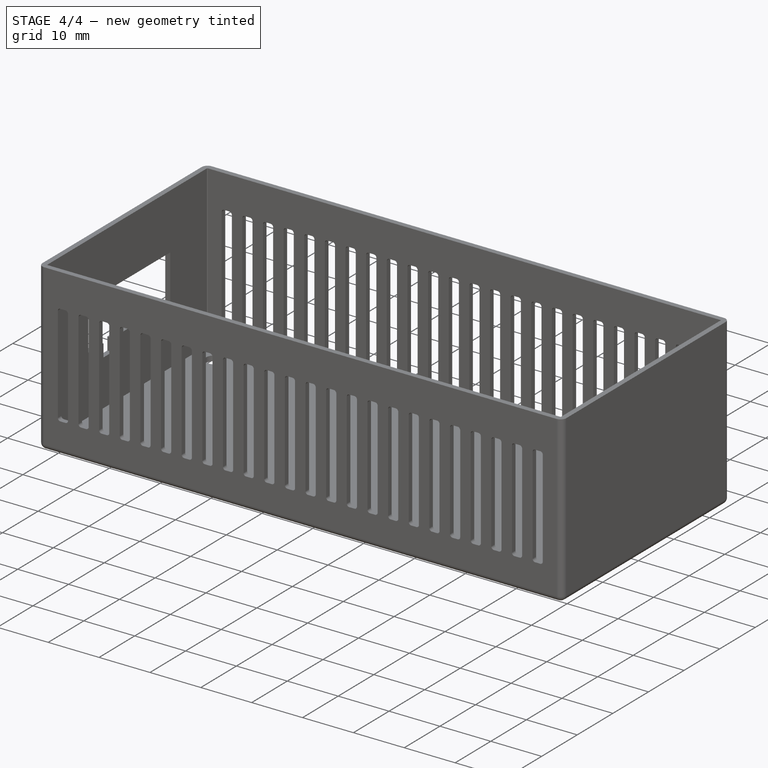
[diagram: stage 4 of 4 — iso view after this stage's code; geometry added in this stage tinted green]
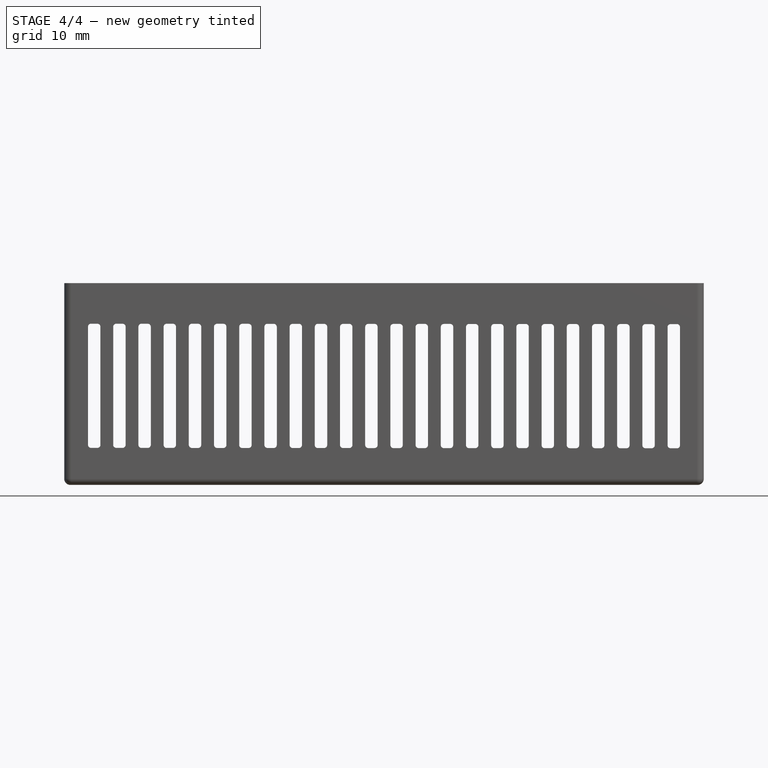
[diagram: stage 4 of 4 — front view after this stage's code; geometry added in this stage tinted green]
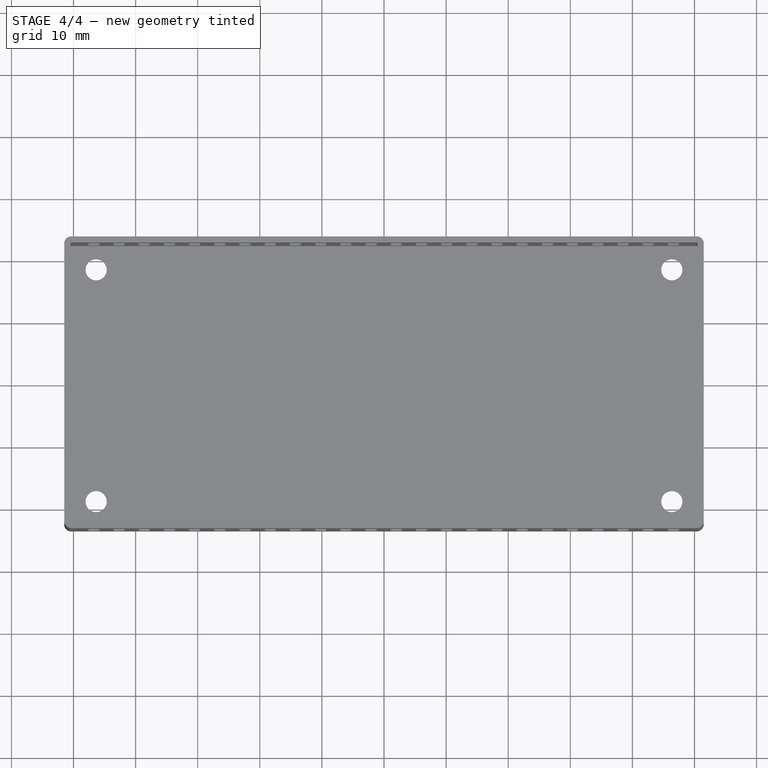
[diagram: stage 4 of 4 — top view after this stage's code; geometry added in this stage tinted green]
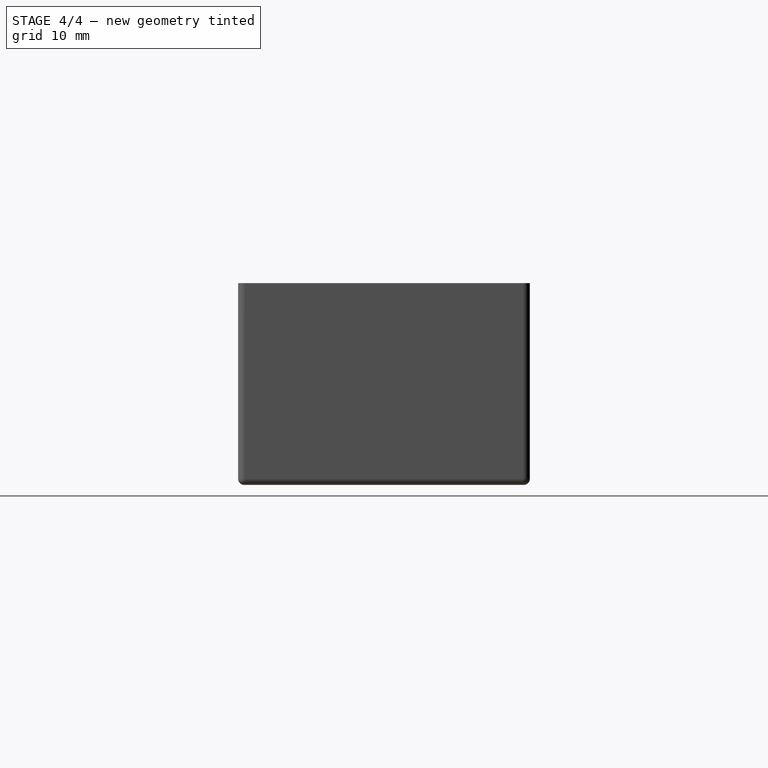
[diagram: stage 4 of 4 — right view after this stage's code; geometry added in this stage tinted green]
FEATURE [Part::Part2DObjectPython] ShapeString001  label="ConnRingOutText"  # Draft 2D object (typed FeaturePython)
  FontFile = <path>
  MakeFace = true
  Placement = pos=(-51.5,-17.9,4.56) rot=(-0.57735,-0.57735,0.57735;2.0944rad)
  Size = 3
  String = RING OUT| DC IN
  Tracking = 0
FEATURE [Part::Part2DObjectPython] ShapeString002  label="Conn24VText"  # Draft 2D object (typed FeaturePython)
  FontFile = <path>
  MakeFace = true
  Placement = pos=(-51.5,-9.5,8.45) rot=(-0.57735,-0.57735,0.57735;2.0944rad)
  Size = 2.5
  String = 2  1 |-24V GRD
  Tracking = 0
FEATURE [PartDesign::Pocket] Pocket006  label="ConnRingOutPocket"
  BaseFeature = -> Pocket005
  Direction = (1,0,0)
  Length = 0.5
  Length2 = 5
  Profile = -> ShapeString001
  ReferenceAxis = -> ShapeString001 [N_Axis]
  Type = 0
FEATURE [PartDesign::Pocket] Pocket007  label="Conn24VText001"
  BaseFeature = -> Pocket006
  Direction = (1,0,0)
  Length = 0.5
  Length2 = 5
  Profile = -> ShapeString002
  ReferenceAxis = -> ShapeString002 [N_Axis]
  Type = 0
FEATURE [PartDesign::Body] Body
  Group = -> [Sketch,Pad,Sketch001,Thickness,Sketch002,Hole,Sketch003,Sketch004,ShapeString,Pocket003,Pocket,Pocket004,Pocket005,ShapeString001,ShapeString002,Pocket006,Pocket007]
  Origin = -> Origin
  Tip = -> Pocket007
note: 3 file-system paths scrubbed to <path> (originals preserved in the JSON sidecar)
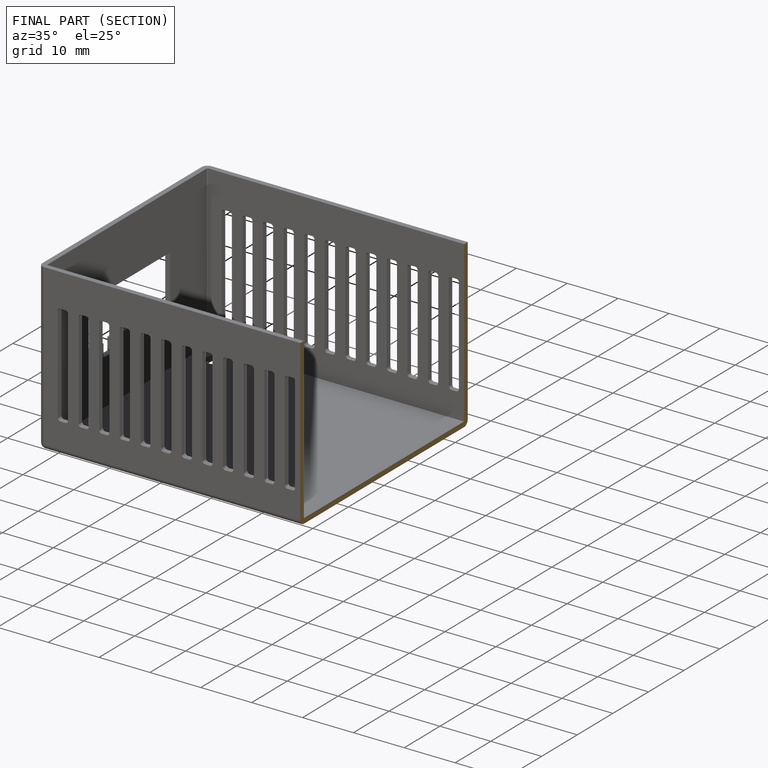
[diagram: finished part — half-section view (interior)]
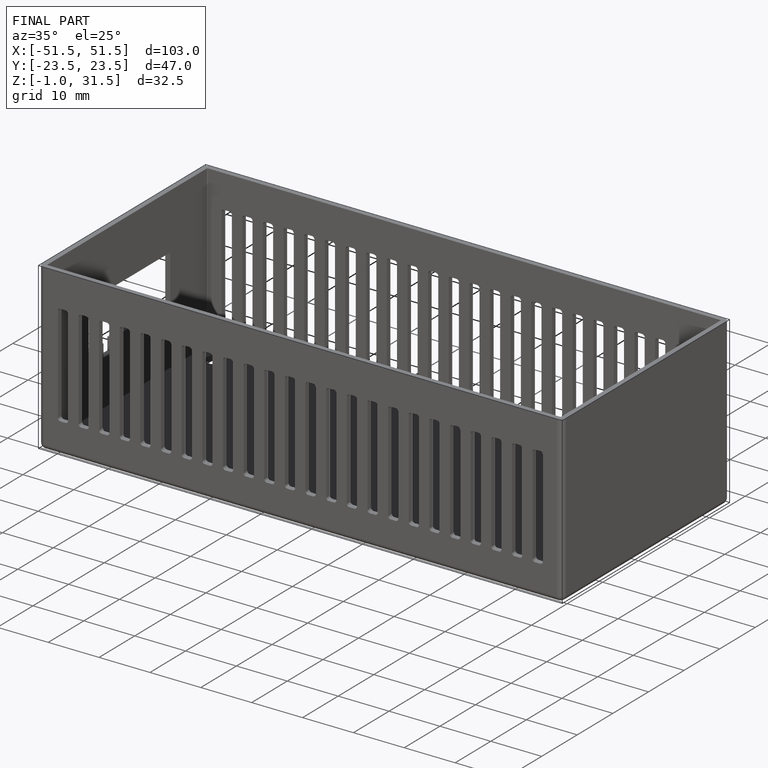
[diagram: finished part — iso view with bounding-box wireframe]
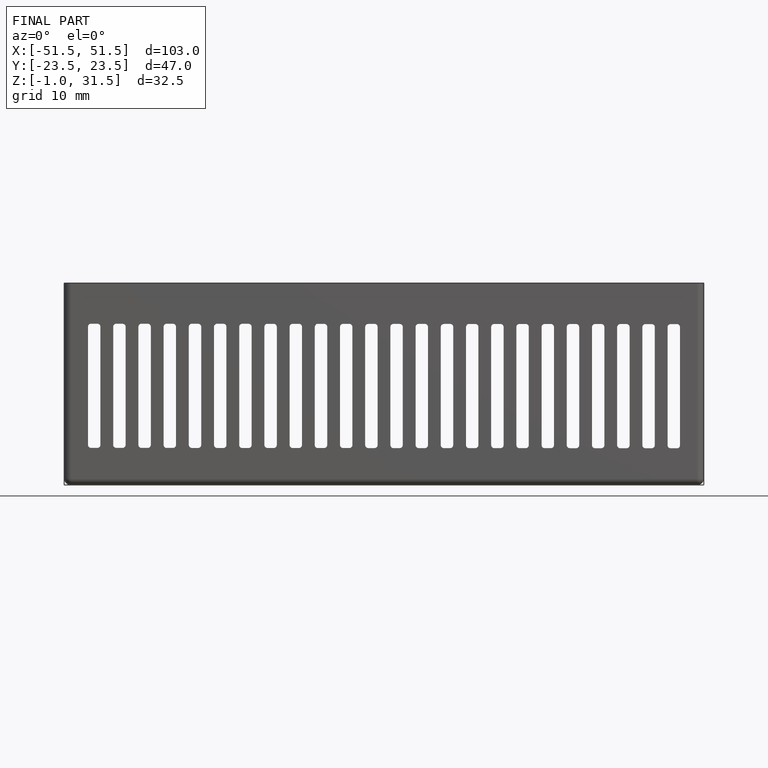
[diagram: finished part — front view with bounding-box wireframe]
